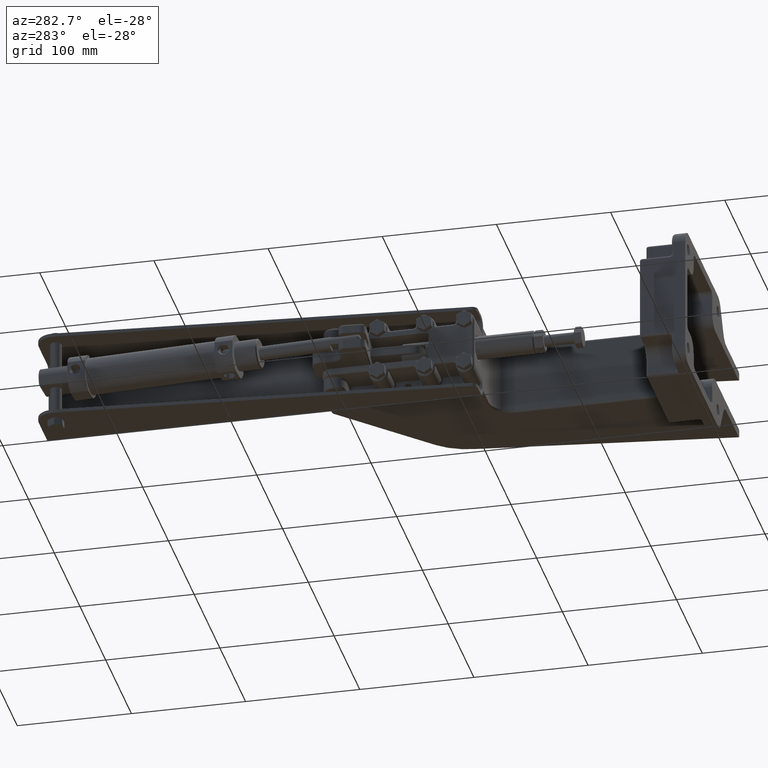
[diagram: clean part render]
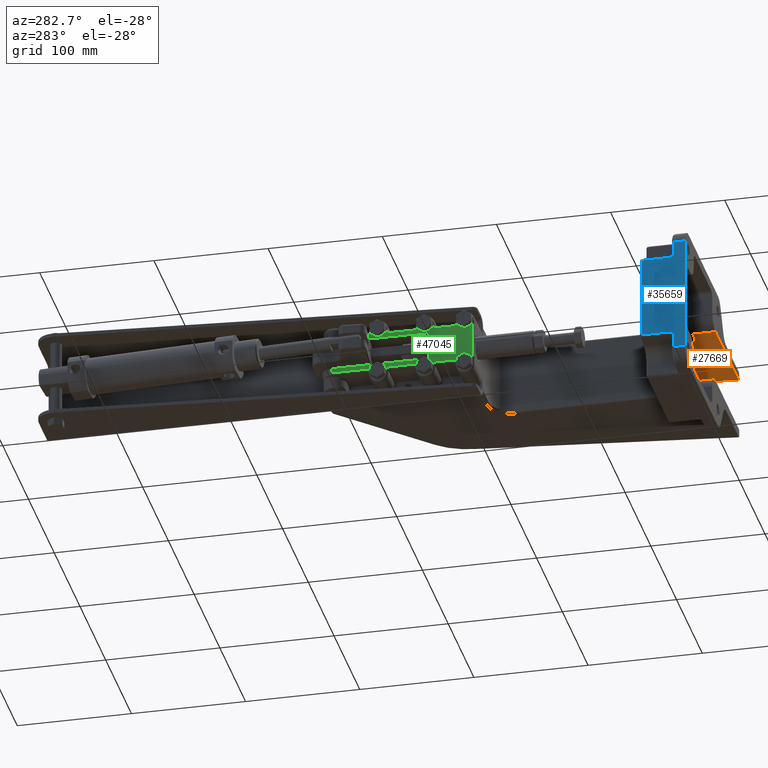
[diagram: same view with three faces highlighted in distinct colors, each labeled with its STEP entity id]
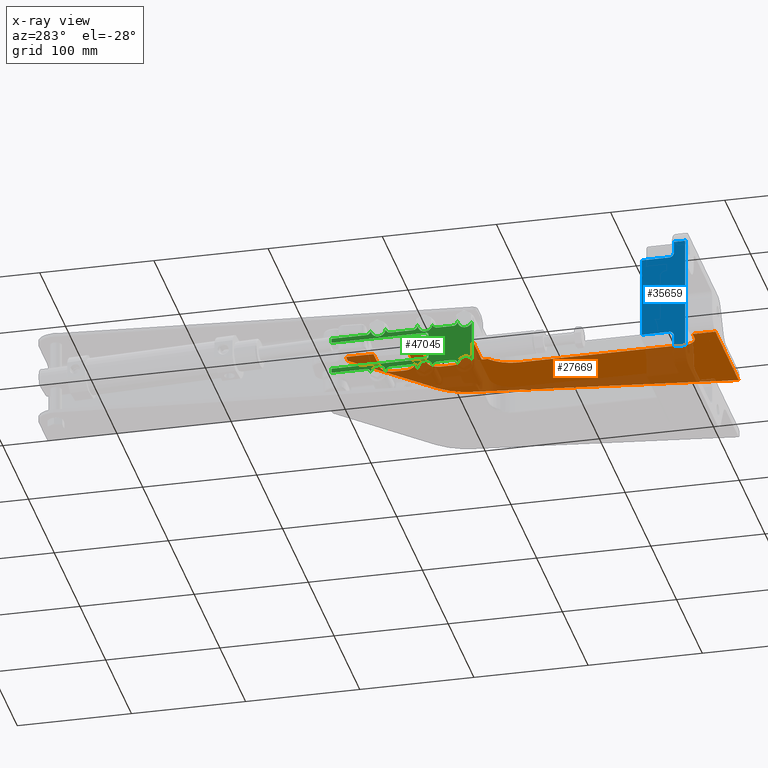
[diagram: x-ray of the same camera — body ghosted, the three highlighted faces saturated]
A machine part, auxiliary view with three faces highlighted in distinct colors.
The next image is the same camera in x-ray (body ghosted, the three faces saturated) — at least one of them is partly hidden behind the body in this view.
Their STEP definitions:

[orange] entity #27669 — the highlighted planar face has unit normal (0, 0, -1).
#163 = LINE ( 'NONE', #12026, #32062 ) ;
#274 = EDGE_CURVE ( 'NONE', #35860, #12873, #26712, .T. ) ;
#442 = VECTOR ( 'NONE', #14995, 1000.000000000000000 ) ;
#520 = VERTEX_POINT ( 'NONE', #581 ) ;
#581 = CARTESIAN_POINT ( 'NONE',  ( -81.91857000000021600, 274.6348562251276300, 23.49999999999998600 ) ) ;
#677 = LINE ( 'NONE', #52401, #11774 ) ;
#775 = LINE ( 'NONE', #21586, #32701 ) ;
#846 = CARTESIAN_POINT ( 'NONE',  ( -116.9185700000001600, 306.0879675292683800, 23.49999999999998600 ) ) ;
#930 = VERTEX_POINT ( 'NONE', #32222 ) ;
#1742 = CARTESIAN_POINT ( 'NONE',  ( -82.50935355070350900, 246.1798111950796500, 23.49999999999998200 ) ) ;
#1882 = ORIENTED_EDGE ( 'NONE', *, *, #40202, .T. ) ;
#1936 = CARTESIAN_POINT ( 'NONE',  ( -86.82017436108488100, 251.5216206661850400, 23.49999999999998600 ) ) ;
#1983 = CARTESIAN_POINT ( 'NONE',  ( -91.91857000000005900, 223.2697090500356000, 23.49999999999998600 ) ) ;
#2164 = CARTESIAN_POINT ( 'NONE',  ( -88.16910736666335400, 224.0065169678878200, 23.49999999999998600 ) ) ;
#2185 = CARTESIAN_POINT ( 'NONE',  ( -85.99535228702329400, 266.2312204202432900, 23.49999999999998600 ) ) ;
#2196 = LINE ( 'NONE', #54014, #10680 ) ;
#2263 = CARTESIAN_POINT ( 'NONE',  ( -39.69335091559545200, 249.0995571702635200, 23.49999999999998600 ) ) ;
#2290 = CARTESIAN_POINT ( 'NONE',  ( -82.94311660439082300, 288.2586009410454200, 23.49999999999998600 ) ) ;
#2349 = CARTESIAN_POINT ( 'NONE',  ( -83.09436858366045400, 228.6387692006640600, 23.49999999999998200 ) ) ;
#2370 = CARTESIAN_POINT ( 'NONE',  ( -82.68388975430093500, 270.5535696795386100, 23.49999999999998600 ) ) ;
#2447 = CARTESIAN_POINT ( 'NONE',  ( -34.47664246440604100, 239.9523446889639000, 23.49999999999998200 ) ) ;
#2468 = CARTESIAN_POINT ( 'NONE',  ( -89.26621662336025100, 293.5915138655526600, 23.49999999999997900 ) ) ;
#2629 = CARTESIAN_POINT ( 'NONE',  ( -30.64380704853266800, 225.8151843571626200, 23.49999999999998600 ) ) ;
#2800 = DIRECTION ( 'NONE',  ( -1.000000000000000000, 0.0000000000000000000, 0.0000000000000000000 ) ) ;
#3485 = DIRECTION ( 'NONE',  ( 0.0000000000000000000, 1.000000000000000000, 0.0000000000000000000 ) ) ;
#3697 = VECTOR ( 'NONE', #5114, 1000.000000000000000 ) ;
#5114 = DIRECTION ( 'NONE',  ( 0.0000000000000000000, 1.000000000000000000, 0.0000000000000000000 ) ) ;
#5182 = EDGE_LOOP ( 'NONE', ( #10980, #27617, #44338, #28459, #36688, #35484, #22841, #8373, #53415, #33739, #50506, #27317, #15190, #33743, #29541, #1882, #40203, #36021, #47267, #35858, #42295, #42963, #12228, #51140, #50167 ) ) ;
#5557 = EDGE_CURVE ( 'NONE', #12873, #30549, #775, .T. ) ;
#5980 = CARTESIAN_POINT ( 'NONE',  ( -82.59205094278864600, 246.4094670022574600, 23.49999999999998600 ) ) ;
#6158 = CARTESIAN_POINT ( 'NONE',  ( -87.70985612698481800, 251.9963707615192700, 23.49999999999998900 ) ) ;
#6196 = CARTESIAN_POINT ( 'NONE',  ( -2.016284046324207800, -1.964210908888137700E-008, 23.50000000000004300 ) ) ;
#6205 = CARTESIAN_POINT ( 'NONE',  ( -91.24868699679852600, 223.2697459344904900, 23.49999999999999300 ) ) ;
#6381 = CARTESIAN_POINT ( 'NONE',  ( -86.82211275833411400, 224.6571571817146100, 23.49999999999997900 ) ) ;
#6401 = CARTESIAN_POINT ( 'NONE',  ( -85.22536189262270100, 266.8735717676903500, 23.49999999999997500 ) ) ;
#6436 = CARTESIAN_POINT ( 'NONE',  ( -81.91857000000027300, 242.5651417748729800, 23.49999999999998600 ) ) ;
#6484 = CARTESIAN_POINT ( 'NONE',  ( -39.12588126834356200, 248.2957500562699500, 23.49999999999997900 ) ) ;
#6505 = CARTESIAN_POINT ( 'NONE',  ( -83.34001547569987200, 288.9888487428596000, 23.49999999999999300 ) ) ;
#6563 = CARTESIAN_POINT ( 'NONE',  ( -82.74764696975958600, 229.3985370332775900, 23.49999999999998600 ) ) ;
#6584 = CARTESIAN_POINT ( 'NONE',  ( -82.15338631849741100, 271.9355180251964200, 23.49999999999998600 ) ) ;
#6660 = CARTESIAN_POINT ( 'NONE',  ( -34.44672726911567700, 239.8833483215081800, 23.49999999999998200 ) ) ;
#6685 = CARTESIAN_POINT ( 'NONE',  ( -91.24646361192733900, 293.9302521069112100, 23.49999999999998600 ) ) ;
#7007 = EDGE_CURVE ( 'NONE', #40114, #22780, #47596, .T. ) ;
#7474 = DIRECTION ( 'NONE',  ( 0.0000000000000000000, 0.0000000000000000000, -1.000000000000000000 ) ) ;
#8084 = CARTESIAN_POINT ( 'NONE',  ( -91.91857000000005900, 264.2697090500353200, 23.49999999999999300 ) ) ;
#8373 = ORIENTED_EDGE ( 'NONE', *, *, #274, .T. ) ;
#8514 = VERTEX_POINT ( 'NONE', #10839 ) ;
#8754 = VECTOR ( 'NONE', #43330, 1000.000000000000000 ) ;
#9209 = DIRECTION ( 'NONE',  ( 0.0000000000000000000, 1.000000000000000000, 0.0000000000000000000 ) ) ;
#9613 = VERTEX_POINT ( 'NONE', #41380 ) ;
#9661 = VERTEX_POINT ( 'NONE', #45937 ) ;
#9758 = DIRECTION ( 'NONE',  ( 0.0000000000000000000, 0.0000000000000000000, 1.000000000000000000 ) ) ;
#10120 = CARTESIAN_POINT ( 'NONE',  ( -82.94311660448281000, 247.2586009412214000, 23.49999999999998900 ) ) ;
#10310 = CARTESIAN_POINT ( 'NONE',  ( -89.26621662419896100, 252.5915138656557700, 23.49999999999998200 ) ) ;
#10540 = CARTESIAN_POINT ( 'NONE',  ( -85.59819207342911800, 225.5377629277247100, 23.49999999999998600 ) ) ;
#10568 = CARTESIAN_POINT ( 'NONE',  ( -84.86256665467951200, 267.2232032934370000, 23.49999999999998200 ) ) ;
#10647 = CARTESIAN_POINT ( 'NONE',  ( -38.99267238048096800, 248.1027440315657800, 23.49999999999997900 ) ) ;
#10669 = CARTESIAN_POINT ( 'NONE',  ( -83.87207868414640200, 289.8418181274458300, 23.49999999999998600 ) ) ;
#10680 = VECTOR ( 'NONE', #41631, 1000.000000000000000 ) ;
#10719 = CARTESIAN_POINT ( 'NONE',  ( -82.65217658163803100, 229.6335030890973000, 23.49999999999998600 ) ) ;
#10741 = CARTESIAN_POINT ( 'NONE',  ( -81.91857000000021600, 274.6348562251276300, 23.49999999999998600 ) ) ;
#10816 = CARTESIAN_POINT ( 'NONE',  ( -33.10171180455100200, 236.5303270724329500, 23.49999999999998600 ) ) ;
#10839 = CARTESIAN_POINT ( 'NONE',  ( -92.49999999999992900, 19.99999795431122300, 23.49999999999999300 ) ) ;
#10980 = ORIENTED_EDGE ( 'NONE', *, *, #52065, .F. ) ;
#11252 = LINE ( 'NONE', #846, #19686 ) ;
#11502 = AXIS2_PLACEMENT_3D ( 'NONE', #32364, #7474, #36592 ) ;
#11774 = VECTOR ( 'NONE', #31341, 1000.000000000000000 ) ;
#12002 = EDGE_CURVE ( 'NONE', #9613, #930, #43222, .T. ) ;
#12026 = CARTESIAN_POINT ( 'NONE',  ( -59.12272016529347200, 19.99999795431140700, 23.49999999999998600 ) ) ;
#12228 = ORIENTED_EDGE ( 'NONE', *, *, #35710, .T. ) ;
#12873 = VERTEX_POINT ( 'NONE', #28389 ) ;
#13086 = DIRECTION ( 'NONE',  ( 5.131603737580131200E-016, 3.458206193102139100E-016, 1.000000000000000000 ) ) ;
#14108 = CARTESIAN_POINT ( 'NONE',  ( -81.91860080620354300, 243.2600723423456400, 23.49999999999998600 ) ) ;
#14288 = CARTESIAN_POINT ( 'NONE',  ( -83.34001547574583000, 247.9888487429477700, 23.49999999999998900 ) ) ;
#14352 = B_SPLINE_CURVE_WITH_KNOTS ( 'NONE', 3,
 ( #18313, #14108, #22499, #51728, #26707, #1742, #30834, #5980, #35087, #10120, #39304, #14288, #43545, #18489, #47729, #22685, #51906, #26893, #1936, #31018, #6158, #35262, #10310, #39478, #14470, #43716 ),
 .UNSPECIFIED., .F., .F.,
 ( 4, 1, 1, 1, 2, 2, 1, 2, 2, 2, 2, 2, 2, 2, 4 ),
 ( 0.0000000000000000000, 0.1249999999999892000, 0.1874999999999812400, 0.2187499999999797700, 0.2343749999999790700, 0.2499999999999783500, 0.3124999999999794100, 0.3437499999999827900, 0.3749999999999861800, 0.4999999999999925600, 0.6249999999999988900, 0.6874999999999990000, 0.7499999999999991100, 0.8749999999999995600, 1.000000000000000000 ),
 .UNSPECIFIED. ) ;
#14435 = CARTESIAN_POINT ( 'NONE',  ( -44.66113141188801400, 254.9195539749323700, 23.49999999999843700 ) ) ;
#14470 = CARTESIAN_POINT ( 'NONE',  ( -91.24646361108871400, 252.9302521068078700, 23.49999999999997200 ) ) ;
#14534 = CARTESIAN_POINT ( 'NONE',  ( -89.60043878202044700, 264.5394041098755900, 23.49999999999997900 ) ) ;
#14632 = CARTESIAN_POINT ( 'NONE',  ( -81.91857000000027300, 283.5651417748727600, 23.49999999999998600 ) ) ;
#14684 = CARTESIAN_POINT ( 'NONE',  ( -84.98221511288998900, 226.1039479570114600, 23.49999999999998900 ) ) ;
#14707 = CARTESIAN_POINT ( 'NONE',  ( -84.29855585323096500, 267.8381363956482300, 23.49999999999999300 ) ) ;
#14718 = LINE ( 'NONE', #42504, #3697 ) ;
#14789 = CARTESIAN_POINT ( 'NONE',  ( -38.05905102691333000, 246.7392998234144800, 23.49999999999998600 ) ) ;
#14814 = CARTESIAN_POINT ( 'NONE',  ( -85.20755382292300300, 291.3385028225126200, 23.49999999999998600 ) ) ;
#14870 = LINE ( 'NONE', #36041, #24660 ) ;
#14876 = CARTESIAN_POINT ( 'NONE',  ( -81.91863099257487600, 232.2437726990090700, 23.49999999999998600 ) ) ;
#14978 = CARTESIAN_POINT ( 'NONE',  ( -32.03982133395371100, 232.9153155769771500, 23.49999999999997900 ) ) ;
#14995 = DIRECTION ( 'NONE',  ( 0.0000000000000000000, 1.000000000000000000, 0.0000000000000000000 ) ) ;
#15189 = LINE ( 'NONE', #34831, #47221 ) ;
#15190 = ORIENTED_EDGE ( 'NONE', *, *, #7007, .T. ) ;
#15620 = PLANE ( 'NONE',  #11502 ) ;
#15729 = EDGE_CURVE ( 'NONE', #49185, #8514, #30396, .T. ) ;
#16170 = DIRECTION ( 'NONE',  ( 1.000000000000000000, -0.0000000000000000000, -0.0000000000000000000 ) ) ;
#16454 = EDGE_CURVE ( 'NONE', #26346, #36990, #53191, .T. ) ;
#17037 = CIRCLE ( 'NONE', #48551, 9.999999999999564800 ) ;
#17278 = VECTOR ( 'NONE', #3485, 1000.000000000000000 ) ;
#17280 = VERTEX_POINT ( 'NONE', #26623 ) ;
#17348 = VERTEX_POINT ( 'NONE', #6436 ) ;
#18003 = CARTESIAN_POINT ( 'NONE',  ( -81.91857000000021600, 233.6348562251263600, 23.49999999999998600 ) ) ;
#18125 = CARTESIAN_POINT ( 'NONE',  ( -81.91860080620355700, 284.2600723422745500, 23.49999999999997900 ) ) ;
#18286 = CARTESIAN_POINT ( 'NONE',  ( -119.2666733217766200, 318.1006240976865300, 23.49999999999990400 ) ) ;
#18313 = CARTESIAN_POINT ( 'NONE',  ( -81.91857000000027300, 242.5651417748729800, 23.49999999999998600 ) ) ;
#18489 = CARTESIAN_POINT ( 'NONE',  ( -83.87207868435213200, 248.8418181277384300, 23.49999999999998900 ) ) ;
#18583 = CARTESIAN_POINT ( 'NONE',  ( -92.49999999999978700, -1.473383389024743700E-006, 23.49999999999998600 ) ) ;
#18587 = LINE ( 'NONE', #32567, #17278 ) ;
#18628 = CARTESIAN_POINT ( 'NONE',  ( -43.60221374070437900, 253.8603773980607300, 23.49999999999998600 ) ) ;
#18709 = CARTESIAN_POINT ( 'NONE',  ( -90.58704219935525300, 223.3368410075069300, 23.49999999999998200 ) ) ;
#18729 = CARTESIAN_POINT ( 'NONE',  ( -88.63991641672630800, 264.8274341136913700, 23.49999999999999300 ) ) ;
#18829 = CARTESIAN_POINT ( 'NONE',  ( -82.42967776869825500, 286.9471936849017200, 23.49999999999999600 ) ) ;
#18886 = CARTESIAN_POINT ( 'NONE',  ( -84.51640172289637600, 226.5858321845183200, 23.49999999999997900 ) ) ;
#18912 = CARTESIAN_POINT ( 'NONE',  ( -83.69566626326225400, 268.6389603071721100, 23.49999999999998200 ) ) ;
#18984 = CARTESIAN_POINT ( 'NONE',  ( -35.57987433334301400, 242.3411125163671000, 23.49999999999998900 ) ) ;
#19012 = CARTESIAN_POINT ( 'NONE',  ( -86.53511114785681000, 292.3440618494042300, 23.49999999999998600 ) ) ;
#19047 = CARTESIAN_POINT ( 'NONE',  ( -86.91857000000018700, 200.9339639966834700, 23.49999999999985800 ) ) ;
#19156 = CARTESIAN_POINT ( 'NONE',  ( -31.81152308022882400, 231.9989167399798800, 23.49999999999998600 ) ) ;
#19333 = VECTOR ( 'NONE', #37669, 1000.000000000000000 ) ;
#19634 = CARTESIAN_POINT ( 'NONE',  ( -91.91857000000005900, 293.9302889499633700, 23.49999999999998600 ) ) ;
#19686 = VECTOR ( 'NONE', #25608, 1000.000000000000000 ) ;
#19807 = EDGE_CURVE ( 'NONE', #26111, #40114, #38073, .T. ) ;
#21041 = VERTEX_POINT ( 'NONE', #32727 ) ;
#21292 = CARTESIAN_POINT ( 'NONE',  ( -74.91846500000043800, 29.99999795431080300, 23.49999999999998600 ) ) ;
#21586 = CARTESIAN_POINT ( 'NONE',  ( -59.12272016529347200, 264.2697090500348100, 23.49999999999998600 ) ) ;
#21961 = FACE_OUTER_BOUND ( 'NONE', #5182, .T. ) ;
#22499 = CARTESIAN_POINT ( 'NONE',  ( -82.00655237239561800, 244.2715921078405200, 23.49999999999998600 ) ) ;
#22685 = CARTESIAN_POINT ( 'NONE',  ( -85.20755382298142400, 250.3385028224968800, 23.49999999999997500 ) ) ;
#22756 = CARTESIAN_POINT ( 'NONE',  ( -91.24868699688032300, 264.2697459344736300, 23.49999999999997900 ) ) ;
#22780 = VERTEX_POINT ( 'NONE', #28808 ) ;
#22841 = ORIENTED_EDGE ( 'NONE', *, *, #31181, .T. ) ;
#22843 = CARTESIAN_POINT ( 'NONE',  ( -109.5939219772113700, 318.1006240976864800, 23.49999999999991100 ) ) ;
#22924 = CARTESIAN_POINT ( 'NONE',  ( -89.11458880245699300, 223.6651047757696100, 23.49999999999998600 ) ) ;
#22950 = CARTESIAN_POINT ( 'NONE',  ( -88.16910736662637800, 265.0065169679078800, 23.49999999999998200 ) ) ;
#23043 = CARTESIAN_POINT ( 'NONE',  ( -82.56430210030866600, 287.3342462833593900, 23.49999999999998600 ) ) ;
#23092 = CARTESIAN_POINT ( 'NONE',  ( -83.88872561770374100, 227.3638480510325300, 23.49999999999998600 ) ) ;
#23117 = CARTESIAN_POINT ( 'NONE',  ( -83.09436858357310000, 269.6387692008465800, 23.49999999999998600 ) ) ;
#23195 = CARTESIAN_POINT ( 'NONE',  ( -34.71264126832429000, 240.4884150723523500, 23.49999999999998900 ) ) ;
#23217 = CARTESIAN_POINT ( 'NONE',  ( -87.40988710392488800, 292.8490478755833200, 23.49999999999998900 ) ) ;
#23383 = CARTESIAN_POINT ( 'NONE',  ( -31.75934960944543700, 231.7799838412726400, 23.49999999999998900 ) ) ;
#23507 = EDGE_CURVE ( 'NONE', #36990, #21041, #14718, .T. ) ;
#23594 = VERTEX_POINT ( 'NONE', #18003 ) ;
#23736 = EDGE_CURVE ( 'NONE', #44370, #23594, #26574, .T. ) ;
#24660 = VECTOR ( 'NONE', #40273, 1000.000000000000000 ) ;
#24897 = EDGE_CURVE ( 'NONE', #8514, #9661, #163, .T. ) ;
#25337 = VECTOR ( 'NONE', #2800, 1000.000000000000000 ) ;
#25608 = DIRECTION ( 'NONE',  ( -0.0000000000000000000, -1.000000000000000000, -0.0000000000000000000 ) ) ;
#25758 = CARTESIAN_POINT ( 'NONE',  ( -74.91846500000052300, 159.0503110259987000, 23.49999999999998600 ) ) ;
#25921 = VECTOR ( 'NONE', #9209, 1000.000000000000000 ) ;
#26111 = VERTEX_POINT ( 'NONE', #38954 ) ;
#26346 = VERTEX_POINT ( 'NONE', #48615 ) ;
#26574 = B_SPLINE_CURVE_WITH_KNOTS ( 'NONE', 3,
 ( #1983, #6205, #18709, #47935, #22924, #52131, #27107, #2164, #31258, #6381, #35486, #10540, #39718, #14684, #43946, #18886, #48118, #23092, #52324, #27287, #2349, #31429, #6563, #35660, #10719, #39898, #14876, #44114 ),
 .UNSPECIFIED., .F., .F.,
 ( 4, 2, 1, 2, 2, 2, 1, 2, 2, 2, 2, 1, 1, 2, 2, 4 ),
 ( 0.0000000000000000000, 0.1249999999999996400, 0.1875000000000001900, 0.2187500000000025000, 0.2500000000000048300, 0.3750000000000146500, 0.4375000000000181000, 0.4687500000000205400, 0.5000000000000229800, 0.5625000000000315300, 0.6250000000000401900, 0.6875000000000487400, 0.7187500000000500700, 0.7343750000000484100, 0.7500000000000466300, 1.000000000000000000 ),
 .UNSPECIFIED. ) ;
#26623 = CARTESIAN_POINT ( 'NONE',  ( -116.9185700000001600, 206.0047365096554000, 23.49999999999998600 ) ) ;
#26707 = CARTESIAN_POINT ( 'NONE',  ( -82.42967776869839700, 245.9471936849561200, 23.49999999999998200 ) ) ;
#26712 = LINE ( 'NONE', #36396, #28020 ) ;
#26893 = CARTESIAN_POINT ( 'NONE',  ( -86.53511114766631400, 251.3440618492996400, 23.49999999999998900 ) ) ;
#27107 = CARTESIAN_POINT ( 'NONE',  ( -88.32595206920517200, 223.9437933772231300, 23.49999999999998900 ) ) ;
#27124 = CARTESIAN_POINT ( 'NONE',  ( -86.82211275846566400, 265.6571571816456900, 23.49999999999998900 ) ) ;
#27199 = CARTESIAN_POINT ( 'NONE',  ( -40.47013791467107100, 250.1541009516799900, 23.49999999999999600 ) ) ;
#27225 = CARTESIAN_POINT ( 'NONE',  ( -82.74178469037657600, 287.8007144608419600, 23.49999999999998600 ) ) ;
#27287 = CARTESIAN_POINT ( 'NONE',  ( -83.33970901072373700, 228.2034688074103300, 23.49999999999998200 ) ) ;
#27308 = CARTESIAN_POINT ( 'NONE',  ( -82.74764696971746500, 270.3985370333655300, 23.49999999999998600 ) ) ;
#27317 = ORIENTED_EDGE ( 'NONE', *, *, #19807, .T. ) ;
#27386 = CARTESIAN_POINT ( 'NONE',  ( -34.50585014813557200, 240.0195203313053600, 23.49999999999998600 ) ) ;
#27412 = CARTESIAN_POINT ( 'NONE',  ( -88.63245533251246400, 293.3923234633920700, 23.49999999999998600 ) ) ;
#27575 = CARTESIAN_POINT ( 'NONE',  ( -31.05417514502293100, 228.7734322083812500, 23.49999999999998900 ) ) ;
#27617 = ORIENTED_EDGE ( 'NONE', *, *, #48663, .T. ) ;
#27669 = ADVANCED_FACE ( 'NONE', ( #21961 ), #15620, .T. ) ;
#27698 = VECTOR ( 'NONE', #51166, 1000.000000000000200 ) ;
#27745 = CARTESIAN_POINT ( 'NONE',  ( -59.12272016529347200, 293.9302889499630300, 23.49999999999998600 ) ) ;
#28020 = VECTOR ( 'NONE', #44851, 1000.000000000000000 ) ;
#28389 = CARTESIAN_POINT ( 'NONE',  ( -116.9185700000001600, 264.2697090500350300, 23.50000000000001400 ) ) ;
#28459 = ORIENTED_EDGE ( 'NONE', *, *, #23736, .T. ) ;
#28610 = EDGE_CURVE ( 'NONE', #930, #35343, #28990, .T. ) ;
#28678 = EDGE_CURVE ( 'NONE', #28749, #46997, #51852, .T. ) ;
#28749 = VERTEX_POINT ( 'NONE', #22843 ) ;
#28808 = CARTESIAN_POINT ( 'NONE',  ( -116.9185700000001700, 293.9302889499635400, 23.50000000000002800 ) ) ;
#28990 = LINE ( 'NONE', #46979, #27698 ) ;
#29541 = ORIENTED_EDGE ( 'NONE', *, *, #28678, .F. ) ;
#29718 = CARTESIAN_POINT ( 'NONE',  ( -91.91857000000005900, 252.9302889499636000, 23.49999999999997900 ) ) ;
#30396 = LINE ( 'NONE', #33464, #19333 ) ;
#30549 = VERTEX_POINT ( 'NONE', #8084 ) ;
#30834 = CARTESIAN_POINT ( 'NONE',  ( -82.56430210030880800, 246.3342462833763000, 23.49999999999998900 ) ) ;
#31018 = CARTESIAN_POINT ( 'NONE',  ( -87.40988710416496600, 251.8490478757004500, 23.49999999999998200 ) ) ;
#31093 = CARTESIAN_POINT ( 'NONE',  ( -91.91857000000005900, 264.2697090500353200, 23.49999999999999300 ) ) ;
#31103 = EDGE_CURVE ( 'NONE', #30549, #520, #37221, .T. ) ;
#31181 = EDGE_CURVE ( 'NONE', #43575, #35860, #14870, .T. ) ;
#31258 = CARTESIAN_POINT ( 'NONE',  ( -87.40213846493304600, 224.3357431189132300, 23.49999999999998900 ) ) ;
#31280 = CARTESIAN_POINT ( 'NONE',  ( -85.59819207331408100, 266.5377629277849700, 23.49999999999999300 ) ) ;
#31341 = DIRECTION ( 'NONE',  ( -1.000000000000000000, 0.0000000000000000000, 0.0000000000000000000 ) ) ;
#31357 = CARTESIAN_POINT ( 'NONE',  ( -39.31359776008894600, 248.5649142635945700, 23.49999999999998900 ) ) ;
#31382 = CARTESIAN_POINT ( 'NONE',  ( -83.17692564379140700, 288.6990717161475000, 23.49999999999998600 ) ) ;
#31429 = CARTESIAN_POINT ( 'NONE',  ( -82.84598623195024900, 229.1674779412283000, 23.49999999999998600 ) ) ;
#31449 = CARTESIAN_POINT ( 'NONE',  ( -82.65217658164137000, 270.6335030890821800, 23.49999999999998900 ) ) ;
#31526 = CARTESIAN_POINT ( 'NONE',  ( -34.45720247571672000, 239.9075427674662300, 23.49999999999998200 ) ) ;
#31552 = CARTESIAN_POINT ( 'NONE',  ( -90.58157165898471400, 293.8624897214184000, 23.49999999999998600 ) ) ;
#31697 = CARTESIAN_POINT ( 'NONE',  ( -30.50762376075406500, 222.8175828217119900, 23.50000000000004300 ) ) ;
#32062 = VECTOR ( 'NONE', #16170, 1000.000000000000000 ) ;
#32222 = CARTESIAN_POINT ( 'NONE',  ( -30.50762376075406500, 222.8175828217119900, 23.50000000000004300 ) ) ;
#32364 = CARTESIAN_POINT ( 'NONE',  ( -1.326870330586772600, -2.045689330000000600E-006, 23.49999999999998600 ) ) ;
#32519 = CARTESIAN_POINT ( 'NONE',  ( -116.9185700000001600, 223.2697090500354900, 23.50000000000000700 ) ) ;
#32567 = CARTESIAN_POINT ( 'NONE',  ( -81.91857000000034400, 159.0503110259987000, 23.49999999999998600 ) ) ;
#32701 = VECTOR ( 'NONE', #50803, 1000.000000000000000 ) ;
#32727 = CARTESIAN_POINT ( 'NONE',  ( -86.91857000000018700, 206.0047365096554000, 23.49999999999998600 ) ) ;
#33464 = CARTESIAN_POINT ( 'NONE',  ( -92.49999999999978700, 159.0503110259987000, 23.49999999999998600 ) ) ;
#33530 = EDGE_CURVE ( 'NONE', #46997, #22780, #11252, .T. ) ;
#33739 = ORIENTED_EDGE ( 'NONE', *, *, #31103, .T. ) ;
#33743 = ORIENTED_EDGE ( 'NONE', *, *, #33530, .F. ) ;
#34181 = EDGE_CURVE ( 'NONE', #35343, #49185, #677, .T. ) ;
#34567 = LINE ( 'NONE', #36755, #43119 ) ;
#34711 = CARTESIAN_POINT ( 'NONE',  ( -84.91846500000008300, 29.99999795431079300, 23.49999999999998600 ) ) ;
#34831 = CARTESIAN_POINT ( 'NONE',  ( -81.91857000000034400, 159.0503110259987000, 23.49999999999998600 ) ) ;
#35064 = CARTESIAN_POINT ( 'NONE',  ( -116.9185700000001600, 252.9302889499636000, 23.49999999999997900 ) ) ;
#35087 = CARTESIAN_POINT ( 'NONE',  ( -82.74178469042924200, 246.8007144609424000, 23.49999999999998600 ) ) ;
#35262 = CARTESIAN_POINT ( 'NONE',  ( -88.63245533235351600, 252.3923234632898100, 23.49999999999998200 ) ) ;
#35343 = VERTEX_POINT ( 'NONE', #6196 ) ;
#35484 = ORIENTED_EDGE ( 'NONE', *, *, #43109, .T. ) ;
#35486 = CARTESIAN_POINT ( 'NONE',  ( -85.99535228708906200, 225.2312204202089600, 23.49999999999999300 ) ) ;
#35504 = CARTESIAN_POINT ( 'NONE',  ( -84.98221511283243500, 267.1039479570414400, 23.49999999999997500 ) ) ;
#35576 = CARTESIAN_POINT ( 'NONE',  ( -39.04589421888292800, 248.1799990915614300, 23.49999999999999300 ) ) ;
#35599 = CARTESIAN_POINT ( 'NONE',  ( -83.42439409905142600, 289.1305711363109500, 23.49999999999998200 ) ) ;
#35660 = CARTESIAN_POINT ( 'NONE',  ( -82.68388975432434100, 229.5535696794899500, 23.49999999999998900 ) ) ;
#35681 = CARTESIAN_POINT ( 'NONE',  ( -81.91863099252171300, 273.2437726992482700, 23.49999999999998600 ) ) ;
#35710 = EDGE_CURVE ( 'NONE', #52674, #26346, #37014, .T. ) ;
#35761 = CARTESIAN_POINT ( 'NONE',  ( -33.86711697858884000, 238.5420918176100700, 23.49999999999998900 ) ) ;
#35783 = CARTESIAN_POINT ( 'NONE',  ( -91.91857000000005900, 293.9302889499633700, 23.49999999999998600 ) ) ;
#35858 = ORIENTED_EDGE ( 'NONE', *, *, #15729, .T. ) ;
#35860 = VERTEX_POINT ( 'NONE', #35064 ) ;
#36021 = ORIENTED_EDGE ( 'NONE', *, *, #28610, .T. ) ;
#36041 = CARTESIAN_POINT ( 'NONE',  ( -59.12272016529347200, 252.9302889499636000, 23.49999999999998600 ) ) ;
#36396 = CARTESIAN_POINT ( 'NONE',  ( -116.9185700000001600, 159.0503110259987000, 23.49999999999998600 ) ) ;
#36592 = DIRECTION ( 'NONE',  ( -1.000000000000000000, 0.0000000000000000000, 0.0000000000000000000 ) ) ;
#36688 = ORIENTED_EDGE ( 'NONE', *, *, #49409, .T. ) ;
#36755 = CARTESIAN_POINT ( 'NONE',  ( -109.5939219772114800, 318.1006240976867600, 23.49999999999998600 ) ) ;
#36990 = VERTEX_POINT ( 'NONE', #19047 ) ;
#37014 = LINE ( 'NONE', #25758, #25921 ) ;
#37221 = B_SPLINE_CURVE_WITH_KNOTS ( 'NONE', 3,
 ( #31093, #22756, #39550, #14534, #43790, #18729, #47955, #22950, #52158, #27124, #2185, #31280, #6401, #35504, #10568, #39740, #14707, #43964, #18912, #48139, #23117, #52345, #27308, #2370, #31449, #6584, #35681, #10741 ),
 .UNSPECIFIED., .F., .F.,
 ( 4, 2, 1, 2, 2, 2, 1, 2, 2, 2, 2, 1, 1, 2, 2, 4 ),
 ( 0.0000000000000000000, 0.1249999999999688600, 0.1874999999999522600, 0.2187499999999454900, 0.2499999999999387700, 0.3749999999999117900, 0.4374999999998942500, 0.4687499999998845400, 0.4999999999998748200, 0.5624999999998553400, 0.6249999999998359100, 0.6874999999998163700, 0.7187499999998112600, 0.7343749999998140400, 0.7499999999998168100, 1.000000000000000000 ),
 .UNSPECIFIED. ) ;
#37669 = DIRECTION ( 'NONE',  ( 0.0000000000000000000, 1.000000000000000000, 0.0000000000000000000 ) ) ;
#38064 = CARTESIAN_POINT ( 'NONE',  ( -107.0248442731995100, 175.8640940088431800, 23.49999999999986900 ) ) ;
#38073 = B_SPLINE_CURVE_WITH_KNOTS ( 'NONE', 3,
 ( #14632, #18125, #39658, #43894, #18829, #48060, #23043, #52264, #27225, #2290, #31382, #6505, #35599, #10669, #39840, #14814, #44063, #19012, #48234, #23217, #52434, #27412, #2468, #31552, #6685, #35783 ),
 .UNSPECIFIED., .F., .F.,
 ( 4, 1, 1, 1, 2, 2, 1, 2, 2, 2, 2, 2, 2, 2, 4 ),
 ( 0.0000000000000000000, 0.1250000000000017200, 0.1874999999999976700, 0.2187499999999952800, 0.2343749999999936700, 0.2499999999999920600, 0.3124999999999962300, 0.3437499999999988900, 0.3750000000000015500, 0.5000000000000034400, 0.6250000000000054400, 0.6875000000000045500, 0.7500000000000036600, 0.8750000000000017800, 1.000000000000000000 ),
 .UNSPECIFIED. ) ;
#38677 = CARTESIAN_POINT ( 'NONE',  ( -86.91857000000018700, 206.0047365096554000, 23.49999999999998600 ) ) ;
#38914 = DIRECTION ( 'NONE',  ( -1.000000000000000000, 0.0000000000000000000, 0.0000000000000000000 ) ) ;
#38954 = CARTESIAN_POINT ( 'NONE',  ( -81.91857000000027300, 283.5651417748727600, 23.49999999999998600 ) ) ;
#39304 = CARTESIAN_POINT ( 'NONE',  ( -83.17692564386361200, 247.6990717162857400, 23.49999999999998900 ) ) ;
#39478 = CARTESIAN_POINT ( 'NONE',  ( -90.58157165814611700, 252.8624897213152000, 23.49999999999998200 ) ) ;
#39550 = CARTESIAN_POINT ( 'NONE',  ( -90.58704219927858500, 264.3368410075226500, 23.49999999999998200 ) ) ;
#39658 = CARTESIAN_POINT ( 'NONE',  ( -82.00655237239561800, 285.2715921077160000, 23.49999999999998600 ) ) ;
#39718 = CARTESIAN_POINT ( 'NONE',  ( -85.22536189271312400, 225.8735717676430900, 23.49999999999998900 ) ) ;
#39740 = CARTESIAN_POINT ( 'NONE',  ( -84.51640172278556000, 267.5858321846685600, 23.49999999999997900 ) ) ;
#39815 = CARTESIAN_POINT ( 'NONE',  ( -38.96712214040619700, 248.0655466438748200, 23.49999999999998200 ) ) ;
#39840 = CARTESIAN_POINT ( 'NONE',  ( -84.28385437983124000, 290.3702442820872400, 23.49999999999999300 ) ) ;
#39895 = LINE ( 'NONE', #38677, #49695 ) ;
#39898 = CARTESIAN_POINT ( 'NONE',  ( -82.15338631855054500, 230.9355180249572500, 23.49999999999998900 ) ) ;
#39992 = CARTESIAN_POINT ( 'NONE',  ( -32.36734972091768000, 234.1293120936906900, 23.49999999999998600 ) ) ;
#40114 = VERTEX_POINT ( 'NONE', #19634 ) ;
#40203 = ORIENTED_EDGE ( 'NONE', *, *, #12002, .T. ) ;
#40202 = EDGE_CURVE ( 'NONE', #28749, #9613, #34567, .T. ) ;
#40273 = DIRECTION ( 'NONE',  ( -1.000000000000000000, 0.0000000000000000000, 0.0000000000000000000 ) ) ;
#41015 = DIRECTION ( 'NONE',  ( 0.7167081675262768600, -0.6973732161483736600, 0.0000000000000000000 ) ) ;
#41380 = CARTESIAN_POINT ( 'NONE',  ( -44.66113141188801400, 254.9195539749323700, 23.49999999999843700 ) ) ;
#41631 = DIRECTION ( 'NONE',  ( 1.000000000000000000, -0.0000000000000000000, -0.0000000000000000000 ) ) ;
#42295 = ORIENTED_EDGE ( 'NONE', *, *, #24897, .T. ) ;
#42306 = DIRECTION ( 'NONE',  ( -1.000000000000000000, -1.727350196852142400E-015, 5.397969365162944700E-016 ) ) ;
#42504 = CARTESIAN_POINT ( 'NONE',  ( -86.91857000000018700, -2.045689330000000600E-006, 23.49999999999998600 ) ) ;
#42906 = DIRECTION ( 'NONE',  ( 1.000000000000000000, -0.0000000000000000000, -0.0000000000000000000 ) ) ;
#42963 = ORIENTED_EDGE ( 'NONE', *, *, #51337, .T. ) ;
#43109 = EDGE_CURVE ( 'NONE', #17348, #43575, #14352, .T. ) ;
#43119 = VECTOR ( 'NONE', #41015, 1000.000000000000000 ) ;
#43222 = B_SPLINE_CURVE_WITH_KNOTS ( 'NONE', 3,
 ( #14435, #18628, #52239, #27199, #2263, #31357, #6484, #35576, #10647, #39815, #14789, #44041, #18984, #48211, #23195, #52414, #27386, #2447, #31526, #6660, #35761, #10816, #39992, #14978, #44211, #19156, #48396, #23383, #52583, #27575, #2629, #31697 ),
 .UNSPECIFIED., .F., .F.,
 ( 4, 1, 1, 1, 1, 1, 2, 2, 1, 1, 1, 1, 1, 1, 2, 2, 1, 1, 1, 1, 1, 2, 2, 4 ),
 ( 0.0000000000000000000, 0.1250000000000282300, 0.1875000000000425500, 0.2187500000000504600, 0.2343750000000532900, 0.2421875000000547100, 0.2460937500000544800, 0.2500000000000542300, 0.3750000000000711100, 0.4375000000000804400, 0.4687500000000849300, 0.4843750000000872600, 0.4921875000000894800, 0.4960937500000894800, 0.4980468750000884300, 0.5000000000000873700, 0.6250000000000315300, 0.6875000000000036600, 0.7187499999999897900, 0.7343749999999829000, 0.7421874999999793500, 0.7460937499999786800, 0.7499999999999779100, 1.000000000000000000 ),
 .UNSPECIFIED. ) ;
#43330 = DIRECTION ( 'NONE',  ( -1.000000000000000000, -0.0000000000000000000, -0.0000000000000000000 ) ) ;
#43545 = CARTESIAN_POINT ( 'NONE',  ( -83.42439409899998300, 248.1305711362379900, 23.49999999999998900 ) ) ;
#43562 = LINE ( 'NONE', #52602, #442 ) ;
#43575 = VERTEX_POINT ( 'NONE', #29718 ) ;
#43716 = CARTESIAN_POINT ( 'NONE',  ( -91.91857000000005900, 252.9302889499636000, 23.49999999999997900 ) ) ;
#43790 = CARTESIAN_POINT ( 'NONE',  ( -89.11458880252395400, 264.6651047757558800, 23.49999999999998900 ) ) ;
#43894 = CARTESIAN_POINT ( 'NONE',  ( -82.26299690750528300, 286.3976653508244100, 23.49999999999998200 ) ) ;
#43946 = CARTESIAN_POINT ( 'NONE',  ( -84.86256665462413200, 226.2232032935121100, 23.49999999999998200 ) ) ;
#43964 = CARTESIAN_POINT ( 'NONE',  ( -83.88872561753756000, 268.3638480512578900, 23.49999999999997900 ) ) ;
#44041 = CARTESIAN_POINT ( 'NONE',  ( -36.83591134086905300, 244.7544262137336400, 23.49999999999998600 ) ) ;
#44063 = CARTESIAN_POINT ( 'NONE',  ( -85.71448705076619500, 291.7727292321704300, 23.49999999999998200 ) ) ;
#44114 = CARTESIAN_POINT ( 'NONE',  ( -81.91857000000021600, 233.6348562251263600, 23.49999999999998600 ) ) ;
#44211 = CARTESIAN_POINT ( 'NONE',  ( -31.88597030418492700, 232.3049450617847900, 23.49999999999998900 ) ) ;
#44338 = ORIENTED_EDGE ( 'NONE', *, *, #50210, .T. ) ;
#44370 = VERTEX_POINT ( 'NONE', #48467 ) ;
#44660 = AXIS2_PLACEMENT_3D ( 'NONE', #38064, #13086, #42306 ) ;
#44851 = DIRECTION ( 'NONE',  ( 0.0000000000000000000, 1.000000000000000000, 0.0000000000000000000 ) ) ;
#45937 = CARTESIAN_POINT ( 'NONE',  ( -84.91846500000008300, 19.99999795431118000, 23.49999999999998600 ) ) ;
#46979 = CARTESIAN_POINT ( 'NONE',  ( -30.50762376075417500, 222.8175828217131600, 23.49999999999998600 ) ) ;
#46997 = VERTEX_POINT ( 'NONE', #49282 ) ;
#47221 = VECTOR ( 'NONE', #51666, 1000.000000000000000 ) ;
#47267 = ORIENTED_EDGE ( 'NONE', *, *, #34181, .T. ) ;
#47596 = LINE ( 'NONE', #27745, #25337 ) ;
#47729 = CARTESIAN_POINT ( 'NONE',  ( -84.28385437977279100, 249.3702442821025000, 23.49999999999999300 ) ) ;
#47935 = CARTESIAN_POINT ( 'NONE',  ( -89.60043878198224800, 223.5394041098835200, 23.49999999999997900 ) ) ;
#47955 = CARTESIAN_POINT ( 'NONE',  ( -88.32595206923863900, 264.9437933772160800, 23.49999999999998200 ) ) ;
#48060 = CARTESIAN_POINT ( 'NONE',  ( -82.50935355070336600, 287.1798111950470200, 23.49999999999997500 ) ) ;
#48118 = CARTESIAN_POINT ( 'NONE',  ( -84.29855585339713300, 226.8381363954227400, 23.49999999999997900 ) ) ;
#48139 = CARTESIAN_POINT ( 'NONE',  ( -83.33970901067391400, 269.2034688075147000, 23.49999999999998900 ) ) ;
#48211 = CARTESIAN_POINT ( 'NONE',  ( -34.99459565279475000, 241.1100487128325400, 23.49999999999999600 ) ) ;
#48234 = CARTESIAN_POINT ( 'NONE',  ( -86.82017436131812400, 292.5216206663164900, 23.49999999999998600 ) ) ;
#48396 = CARTESIAN_POINT ( 'NONE',  ( -31.78014818944655700, 231.8675810883043200, 23.49999999999998200 ) ) ;
#48467 = CARTESIAN_POINT ( 'NONE',  ( -91.91857000000005900, 223.2697090500356000, 23.49999999999998600 ) ) ;
#48551 = AXIS2_PLACEMENT_3D ( 'NONE', #34711, #9758, #38914 ) ;
#48615 = CARTESIAN_POINT ( 'NONE',  ( -74.91846500000042400, 177.2573119823935900, 23.49999999999984700 ) ) ;
#48663 = EDGE_CURVE ( 'NONE', #17280, #51024, #43562, .T. ) ;
#49185 = VERTEX_POINT ( 'NONE', #18583 ) ;
#49282 = CARTESIAN_POINT ( 'NONE',  ( -116.9185700000001600, 318.1006240976865900, 23.49999999999996400 ) ) ;
#49409 = EDGE_CURVE ( 'NONE', #23594, #17348, #18587, .T. ) ;
#49695 = VECTOR ( 'NONE', #42906, 1000.000000000000000 ) ;
#50167 = ORIENTED_EDGE ( 'NONE', *, *, #23507, .T. ) ;
#50210 = EDGE_CURVE ( 'NONE', #51024, #44370, #2196, .T. ) ;
#50424 = EDGE_CURVE ( 'NONE', #520, #26111, #15189, .T. ) ;
#50506 = ORIENTED_EDGE ( 'NONE', *, *, #50424, .T. ) ;
#50803 = DIRECTION ( 'NONE',  ( 1.000000000000000000, -0.0000000000000000000, -0.0000000000000000000 ) ) ;
#51024 = VERTEX_POINT ( 'NONE', #32519 ) ;
#51140 = ORIENTED_EDGE ( 'NONE', *, *, #16454, .T. ) ;
#51166 = DIRECTION ( 'NONE',  ( 0.1268357536256873000, -0.9919237327547939500, 0.0000000000000000000 ) ) ;
#51337 = EDGE_CURVE ( 'NONE', #9661, #52674, #17037, .T. ) ;
#51666 = DIRECTION ( 'NONE',  ( 0.0000000000000000000, 1.000000000000000000, 0.0000000000000000000 ) ) ;
#51728 = CARTESIAN_POINT ( 'NONE',  ( -82.26299690750541100, 245.3976653509175800, 23.49999999999998200 ) ) ;
#51852 = LINE ( 'NONE', #18286, #8754 ) ;
#51906 = CARTESIAN_POINT ( 'NONE',  ( -85.71448705114727300, 250.7727292323797000, 23.49999999999998600 ) ) ;
#52065 = EDGE_CURVE ( 'NONE', #17280, #21041, #39895, .T. ) ;
#52131 = CARTESIAN_POINT ( 'NONE',  ( -88.63991641667365700, 223.8274341137022200, 23.49999999999998600 ) ) ;
#52158 = CARTESIAN_POINT ( 'NONE',  ( -87.40213846508095200, 265.3357431188326200, 23.49999999999998900 ) ) ;
#52239 = CARTESIAN_POINT ( 'NONE',  ( -42.09283466507299900, 252.2042203868262800, 23.49999999999998600 ) ) ;
#52264 = CARTESIAN_POINT ( 'NONE',  ( -82.59205094280156300, 287.4094670022828400, 23.49999999999998200 ) ) ;
#52324 = CARTESIAN_POINT ( 'NONE',  ( -83.69566626321237400, 227.6389603072766200, 23.49999999999998600 ) ) ;
#52345 = CARTESIAN_POINT ( 'NONE',  ( -82.84598623188476600, 270.1674779413651200, 23.49999999999998600 ) ) ;
#52401 = CARTESIAN_POINT ( 'NONE',  ( -59.12272016529347200, -2.045689330000000600E-006, 23.49999999999998600 ) ) ;
#52414 = CARTESIAN_POINT ( 'NONE',  ( -34.57433531503999500, 240.1760728174341200, 23.49999999999998900 ) ) ;
#52434 = CARTESIAN_POINT ( 'NONE',  ( -87.70985612690556400, 292.9963707614682000, 23.49999999999998900 ) ) ;
#52583 = CARTESIAN_POINT ( 'NONE',  ( -31.74942418936869300, 231.7379340967280000, 23.49999999999997900 ) ) ;
#52602 = CARTESIAN_POINT ( 'NONE',  ( -116.9185700000001600, 159.0503110259987000, 23.49999999999998600 ) ) ;
#52674 = VERTEX_POINT ( 'NONE', #21292 ) ;
#53191 = CIRCLE ( 'NONE', #44660, 32.13659357113528600 ) ;
#53415 = ORIENTED_EDGE ( 'NONE', *, *, #5557, .T. ) ;
#54014 = CARTESIAN_POINT ( 'NONE',  ( -59.12272016529347200, 223.2697090500353700, 23.49999999999998600 ) ) ;

[blue] entity #35659 — the highlighted planar face has unit normal (-1, 0, 0).
#219 = CARTESIAN_POINT ( 'NONE',  ( -210.0000000000000300, 13.99999795431078400, 36.00000000000014900 ) ) ;
#534 = CARTESIAN_POINT ( 'NONE',  ( -210.0000000000000300, 11.07837698371768400, 37.26509126820993600 ) ) ;
#1525 = CARTESIAN_POINT ( 'NONE',  ( -210.0000000000000600, 13.73723500812247300, -35.99953247218130100 ) ) ;
#1533 = EDGE_CURVE ( 'NONE', #16693, #39672, #42235, .T. ) ;
#1705 = CARTESIAN_POINT ( 'NONE',  ( -210.0000000000000000, 10.98583140832222300, -37.35660999177789400 ) ) ;
#3915 = VECTOR ( 'NONE', #6538, 1000.000000000000000 ) ;
#4541 = DIRECTION ( 'NONE',  ( -0.0000000000000000000, -0.0000000000000000000, -1.000000000000000000 ) ) ;
#4572 = CARTESIAN_POINT ( 'NONE',  ( -210.0000000000001100, 9.999027294698130700, 39.73727019774127500 ) ) ;
#4759 = CARTESIAN_POINT ( 'NONE',  ( -210.0000000000000900, 11.55929338999537500, 36.81875749666782800 ) ) ;
#5211 = LINE ( 'NONE', #39875, #3915 ) ;
#5756 = CARTESIAN_POINT ( 'NONE',  ( -210.0000000000000300, 13.34882108229869500, -36.03724206006137400 ) ) ;
#5925 = VECTOR ( 'NONE', #38586, 1000.000000000000000 ) ;
#5946 = CARTESIAN_POINT ( 'NONE',  ( -210.0000000000000300, 10.60344367222543100, -37.88234894914121800 ) ) ;
#6307 = ORIENTED_EDGE ( 'NONE', *, *, #10001, .T. ) ;
#6538 = DIRECTION ( 'NONE',  ( 0.0000000000000000000, 1.000000000000000000, 0.0000000000000000000 ) ) ;
#8691 = LINE ( 'NONE', #16971, #40686 ) ;
#8916 = CARTESIAN_POINT ( 'NONE',  ( -210.0000000000000600, 12.22442929709253100, 36.40589818383895700 ) ) ;
#9184 = ORIENTED_EDGE ( 'NONE', *, *, #12633, .T. ) ;
#9919 = CARTESIAN_POINT ( 'NONE',  ( -210.0000000000000300, 12.71793970795269300, -36.21052265206959200 ) ) ;
#9954 = VECTOR ( 'NONE', #33136, 1000.000000000000000 ) ;
#10001 = EDGE_CURVE ( 'NONE', #50855, #26227, #44834, .T. ) ;
#10086 = CARTESIAN_POINT ( 'NONE',  ( -210.0000000000000000, 10.41446508972215800, -38.22626315052385600 ) ) ;
#12633 = EDGE_CURVE ( 'NONE', #21618, #33424, #15069, .T. ) ;
#12807 = VECTOR ( 'NONE', #18862, 1000.000000000000000 ) ;
#12838 = CARTESIAN_POINT ( 'NONE',  ( -210.0000000000000300, -2.045689330000000600E-006, -50.49999999999994300 ) ) ;
#12912 = CARTESIAN_POINT ( 'NONE',  ( -210.0000000000000900, 10.02449290639087700, 39.47664194037528100 ) ) ;
#13089 = CARTESIAN_POINT ( 'NONE',  ( -210.0000000000001400, 13.46917566858214800, 36.00007157540974100 ) ) ;
#14071 = CARTESIAN_POINT ( 'NONE',  ( -210.0000000000000300, 12.52998531131866000, -36.27946501473426400 ) ) ;
#14102 = VECTOR ( 'NONE', #44773, 1000.000000000000000 ) ;
#14259 = CARTESIAN_POINT ( 'NONE',  ( -209.9999999999999700, 10.32985843996462600, -38.40858056790707300 ) ) ;
#14878 = CARTESIAN_POINT ( 'NONE',  ( -210.0000000000000300, 37.99999795431082100, 36.00000000000017800 ) ) ;
#14972 = VERTEX_POINT ( 'NONE', #219 ) ;
#15027 = B_SPLINE_CURVE_WITH_KNOTS ( 'NONE', 3,
 ( #30631, #1525, #5756, #34858, #9919, #39081, #14071, #43321, #18275, #47514, #22468, #51698, #26669, #1705, #30806, #5946, #35045, #10086, #39271, #14259, #43505, #18458, #47698 ),
 .UNSPECIFIED., .F., .F.,
 ( 4, 1, 1, 2, 2, 1, 1, 2, 2, 2, 1, 2, 2, 4 ),
 ( 0.0000000000000000000, 0.1250000000000071300, 0.1875000000000108000, 0.2187500000000117400, 0.2500000000000126600, 0.3750000000000124300, 0.4375000000000123800, 0.4687500000000112700, 0.5000000000000101000, 0.6250000000000086600, 0.6875000000000078800, 0.7187500000000076600, 0.7500000000000074400, 1.000000000000000000 ),
 .UNSPECIFIED. ) ;
#15069 = LINE ( 'NONE', #50292, #35943 ) ;
#15528 = CARTESIAN_POINT ( 'NONE',  ( -210.0000000000000300, 4.999997954310738500, -50.49999999999994300 ) ) ;
#15589 = CARTESIAN_POINT ( 'NONE',  ( -209.9999999999999700, 9.999997954310762400, -50.49999999999994300 ) ) ;
#16693 = VERTEX_POINT ( 'NONE', #18705 ) ;
#16757 = CARTESIAN_POINT ( 'NONE',  ( -210.0000000000000300, -1.984805718922658800E-006, -50.49999999999994300 ) ) ;
#16971 = CARTESIAN_POINT ( 'NONE',  ( -210.0000000000000300, 9.999997954310631000, 0.0000000000000000000 ) ) ;
#17020 = EDGE_CURVE ( 'NONE', #42014, #48414, #8691, .T. ) ;
#17030 = DIRECTION ( 'NONE',  ( 0.0000000000000000000, 0.0000000000000000000, 1.000000000000000000 ) ) ;
#17102 = CARTESIAN_POINT ( 'NONE',  ( -210.0000000000000300, 10.20351507908118000, 38.71311020822850700 ) ) ;
#17617 = ORIENTED_EDGE ( 'NONE', *, *, #40280, .T. ) ;
#17819 = CARTESIAN_POINT ( 'NONE',  ( -210.0000000000000300, 9.999997954310673600, 50.49999999999994300 ) ) ;
#18260 = ORIENTED_EDGE ( 'NONE', *, *, #17020, .T. ) ;
#18275 = CARTESIAN_POINT ( 'NONE',  ( -210.0000000000000600, 11.88200494516079300, -36.58798623216294700 ) ) ;
#18290 = EDGE_CURVE ( 'NONE', #46146, #42014, #15027, .T. ) ;
#18458 = CARTESIAN_POINT ( 'NONE',  ( -210.0000000000000000, 10.00006922275788500, -39.47398404074973400 ) ) ;
#18686 = CARTESIAN_POINT ( 'NONE',  ( -210.0000000000000300, 37.99999795431082100, -36.00000000000024200 ) ) ;
#18705 = CARTESIAN_POINT ( 'NONE',  ( -210.0000000000000300, -2.045689329549645900E-006, 50.49999999999992200 ) ) ;
#18862 = DIRECTION ( 'NONE',  ( -0.0000000000000000000, -0.0000000000000000000, -1.000000000000000000 ) ) ;
#19942 = EDGE_CURVE ( 'NONE', #39672, #48414, #47445, .T. ) ;
#19985 = VECTOR ( 'NONE', #49684, 1000.000000000000000 ) ;
#20447 = CARTESIAN_POINT ( 'NONE',  ( -210.0000000000000300, -2.045689330000000600E-006, 0.0000000000000000000 ) ) ;
#21285 = CARTESIAN_POINT ( 'NONE',  ( -210.0000000000000300, 10.58955450400083200, 37.88032770517369100 ) ) ;
#21489 = EDGE_CURVE ( 'NONE', #33424, #14972, #47940, .T. ) ;
#21618 = VERTEX_POINT ( 'NONE', #17819 ) ;
#22468 = CARTESIAN_POINT ( 'NONE',  ( -210.0000000000000900, 11.36540752899337500, -36.98955492145384500 ) ) ;
#23446 = EDGE_LOOP ( 'NONE', ( #9184, #42116, #17617, #6307, #50969, #52623, #18260, #31733, #30950, #37507 ) ) ;
#24977 = DIRECTION ( 'NONE',  ( -0.0000000000000000000, -0.0000000000000000000, -1.000000000000000000 ) ) ;
#25481 = CARTESIAN_POINT ( 'NONE',  ( -209.9999999999999700, 10.98894904244503200, 37.36373861580279500 ) ) ;
#26227 = VERTEX_POINT ( 'NONE', #18686 ) ;
#26284 = EDGE_CURVE ( 'NONE', #16693, #21618, #5211, .T. ) ;
#26669 = CARTESIAN_POINT ( 'NONE',  ( -210.0000000000000300, 11.21800568487508400, -37.12531359612235300 ) ) ;
#26856 = AXIS2_PLACEMENT_3D ( 'NONE', #12838, #42047, #17030 ) ;
#27800 = CARTESIAN_POINT ( 'NONE',  ( -210.0000000000000300, 37.99999795431082100, 0.0000000000000000000 ) ) ;
#29657 = CARTESIAN_POINT ( 'NONE',  ( -210.0000000000000300, 11.35795852125817800, 36.98453608934058000 ) ) ;
#30631 = CARTESIAN_POINT ( 'NONE',  ( -210.0000000000000300, 13.99999795431078400, -36.00000000000014200 ) ) ;
#30806 = CARTESIAN_POINT ( 'NONE',  ( -210.0000000000000600, 10.81826914553326100, -37.56060910937219400 ) ) ;
#30950 = ORIENTED_EDGE ( 'NONE', *, *, #1533, .F. ) ;
#31733 = ORIENTED_EDGE ( 'NONE', *, *, #19942, .F. ) ;
#33136 = DIRECTION ( 'NONE',  ( -0.0000000000000000000, -1.000000000000000000, -0.0000000000000000000 ) ) ;
#33424 = VERTEX_POINT ( 'NONE', #53920 ) ;
#33666 = CARTESIAN_POINT ( 'NONE',  ( -210.0000000000000300, 9.999997954310694900, 40.00000000000000000 ) ) ;
#33860 = CARTESIAN_POINT ( 'NONE',  ( -210.0000000000000900, 11.99185748155682100, 36.52971669780262700 ) ) ;
#34858 = CARTESIAN_POINT ( 'NONE',  ( -210.0000000000000900, 12.90569986572360000, -36.14845561856989100 ) ) ;
#35045 = CARTESIAN_POINT ( 'NONE',  ( -210.0000000000000000, 10.50341576151567800, -38.04955440091533300 ) ) ;
#35659 = ADVANCED_FACE ( 'NONE', ( #36393 ), #50255, .T. ) ;
#35943 = VECTOR ( 'NONE', #4541, 1000.000000000000000 ) ;
#36393 = FACE_OUTER_BOUND ( 'NONE', #23446, .T. ) ;
#36941 = CARTESIAN_POINT ( 'NONE',  ( -210.0000000000000300, 18.99999795431074300, 36.00000000000032700 ) ) ;
#37507 = ORIENTED_EDGE ( 'NONE', *, *, #26284, .T. ) ;
#38071 = CARTESIAN_POINT ( 'NONE',  ( -210.0000000000000300, 12.95893071856150900, 36.10155506829556100 ) ) ;
#38586 = DIRECTION ( 'NONE',  ( 0.0000000000000000000, 1.000000000000000000, 0.0000000000000000000 ) ) ;
#39081 = CARTESIAN_POINT ( 'NONE',  ( -210.0000000000001100, 12.59324381056031700, -36.25510158103679000 ) ) ;
#39271 = CARTESIAN_POINT ( 'NONE',  ( -210.0000000000000000, 10.35762625050786700, -38.34618082755940100 ) ) ;
#39672 = VERTEX_POINT ( 'NONE', #16757 ) ;
#39875 = CARTESIAN_POINT ( 'NONE',  ( -210.0000000000000300, 18.99999795431074300, 50.49999999999994300 ) ) ;
#40280 = EDGE_CURVE ( 'NONE', #14972, #50855, #48954, .T. ) ;
#40686 = VECTOR ( 'NONE', #24977, 1000.000000000000000 ) ;
#42014 = VERTEX_POINT ( 'NONE', #47672 ) ;
#42047 = DIRECTION ( 'NONE',  ( -1.000000000000000000, 0.0000000000000000000, 0.0000000000000000000 ) ) ;
#42116 = ORIENTED_EDGE ( 'NONE', *, *, #21489, .T. ) ;
#42118 = CARTESIAN_POINT ( 'NONE',  ( -210.0000000000000600, 10.12774393731253200, 38.96234172539693200 ) ) ;
#42235 = LINE ( 'NONE', #20447, #19985 ) ;
#42314 = CARTESIAN_POINT ( 'NONE',  ( -210.0000000000000300, 13.99999795431078400, 36.00000000000014900 ) ) ;
#42818 = CARTESIAN_POINT ( 'NONE',  ( -210.0000000000000300, 13.99999795431078400, -36.00000000000014200 ) ) ;
#43321 = CARTESIAN_POINT ( 'NONE',  ( -209.9999999999999700, 12.22637987897668700, -36.40454929083824700 ) ) ;
#43505 = CARTESIAN_POINT ( 'NONE',  ( -210.0000000000000300, 10.10145089867381600, -38.95475189160087100 ) ) ;
#44072 = EDGE_CURVE ( 'NONE', #26227, #46146, #53027, .T. ) ;
#44773 = DIRECTION ( 'NONE',  ( 0.0000000000000000000, 1.000000000000000000, 0.0000000000000000000 ) ) ;
#44834 = LINE ( 'NONE', #27800, #12807 ) ;
#46146 = VERTEX_POINT ( 'NONE', #42818 ) ;
#46344 = CARTESIAN_POINT ( 'NONE',  ( -210.0000000000000900, 10.40544456945012400, 38.22542233285103200 ) ) ;
#47445 = LINE ( 'NONE', #15528, #14102 ) ;
#47514 = CARTESIAN_POINT ( 'NONE',  ( -210.0000000000001100, 11.51514946278255300, -36.86033366454158500 ) ) ;
#47672 = CARTESIAN_POINT ( 'NONE',  ( -210.0000000000000300, 9.999997954310694900, -40.00000000000018500 ) ) ;
#47698 = CARTESIAN_POINT ( 'NONE',  ( -210.0000000000000300, 9.999997954310694900, -40.00000000000018500 ) ) ;
#47940 = B_SPLINE_CURVE_WITH_KNOTS ( 'NONE', 3,
 ( #33666, #4572, #12912, #42118, #17102, #46344, #21285, #50511, #25481, #534, #29657, #4759, #33860, #8916, #38071, #13089, #42314 ),
 .UNSPECIFIED., .F., .F.,
 ( 4, 2, 2, 1, 2, 2, 2, 2, 4 ),
 ( 0.0000000000000000000, 0.1250000000000018900, 0.2500000000000037700, 0.3750000000000056600, 0.4375000000000063800, 0.5000000000000071100, 0.6250000000000056600, 0.7500000000000042200, 1.000000000000000000 ),
 .UNSPECIFIED. ) ;
#48414 = VERTEX_POINT ( 'NONE', #15589 ) ;
#48954 = LINE ( 'NONE', #36941, #5925 ) ;
#49684 = DIRECTION ( 'NONE',  ( -0.0000000000000000000, -0.0000000000000000000, -1.000000000000000000 ) ) ;
#50255 = PLANE ( 'NONE',  #26856 ) ;
#50292 = CARTESIAN_POINT ( 'NONE',  ( -210.0000000000000300, 9.999997954310631000, 0.0000000000000000000 ) ) ;
#50511 = CARTESIAN_POINT ( 'NONE',  ( -210.0000000000000300, 10.82265866371255200, 37.56623999577998800 ) ) ;
#50855 = VERTEX_POINT ( 'NONE', #14878 ) ;
#50969 = ORIENTED_EDGE ( 'NONE', *, *, #44072, .T. ) ;
#51698 = CARTESIAN_POINT ( 'NONE',  ( -210.0000000000001100, 11.26724220521679100, -37.07848041022865700 ) ) ;
#52623 = ORIENTED_EDGE ( 'NONE', *, *, #18290, .T. ) ;
#53027 = LINE ( 'NONE', #53970, #9954 ) ;
#53920 = CARTESIAN_POINT ( 'NONE',  ( -210.0000000000000300, 9.999997954310694900, 40.00000000000000000 ) ) ;
#53970 = CARTESIAN_POINT ( 'NONE',  ( -210.0000000000000300, 18.99999795431074300, -36.00000000000032000 ) ) ;

[green] entity #47045 — the highlighted planar face has unit normal (-1, -0, 0).
#70 = CIRCLE ( 'NONE', #12198, 3.999999973999968100 ) ;
#226 = CARTESIAN_POINT ( 'NONE',  ( -4.000000001709272700, 31.99999999999968700, 16.25000000057566400 ) ) ;
#354 = CIRCLE ( 'NONE', #29728, 6.500000000000005300 ) ;
#525 = CIRCLE ( 'NONE', #27047, 4.000000031999982200 ) ;
#632 = LINE ( 'NONE', #45404, #21486 ) ;
#659 = DIRECTION ( 'NONE',  ( 4.273003825772112200E-010, 1.173735997213633500E-016, 1.000000000000000000 ) ) ;
#1212 = EDGE_CURVE ( 'NONE', #44274, #17897, #29810, .T. ) ;
#1338 = ORIENTED_EDGE ( 'NONE', *, *, #2610, .T. ) ;
#2430 = VERTEX_POINT ( 'NONE', #2790 ) ;
#2610 = EDGE_CURVE ( 'NONE', #47381, #17172, #27130, .T. ) ;
#2627 = VERTEX_POINT ( 'NONE', #42352 ) ;
#2637 = VERTEX_POINT ( 'NONE', #13292 ) ;
#2790 = CARTESIAN_POINT ( 'NONE',  ( -14.00000001581019000, 31.99999999999968700, -16.74999998937533600 ) ) ;
#2874 = CIRCLE ( 'NONE', #8769, 6.499999999999999100 ) ;
#2883 = CARTESIAN_POINT ( 'NONE',  ( -24.49999999999688400, 31.99999999999988300, 20.24999957410752700 ) ) ;
#3446 = CARTESIAN_POINT ( 'NONE',  ( -27.50000003077307700, 31.99999999999968700, 10.25000001880122500 ) ) ;
#3641 = ORIENTED_EDGE ( 'NONE', *, *, #5883, .T. ) ;
#3978 = EDGE_CURVE ( 'NONE', #27997, #28088, #6737, .T. ) ;
#3989 = FACE_OUTER_BOUND ( 'NONE', #32906, .T. ) ;
#3993 = ORIENTED_EDGE ( 'NONE', *, *, #21789, .T. ) ;
#4014 = AXIS2_PLACEMENT_3D ( 'NONE', #24972, #29184, #4245 ) ;
#4080 = VECTOR ( 'NONE', #48011, 1000.000000000000000 ) ;
#4245 = DIRECTION ( 'NONE',  ( 4.273003825772112200E-010, 1.173735997213633500E-016, 1.000000000000000000 ) ) ;
#5740 = EDGE_CURVE ( 'NONE', #23424, #34529, #45142, .T. ) ;
#5883 = EDGE_CURVE ( 'NONE', #20838, #53117, #42518, .T. ) ;
#6155 = DIRECTION ( 'NONE',  ( 2.926414881103468200E-015, -1.000000000000000000, -2.843984612482142200E-015 ) ) ;
#6565 = VERTEX_POINT ( 'NONE', #52535 ) ;
#6737 = LINE ( 'NONE', #47182, #28872 ) ;
#6843 = DIRECTION ( 'NONE',  ( -1.000000000000000000, 3.494332764633754900E-017, 4.273003825772112200E-010 ) ) ;
#6850 = DIRECTION ( 'NONE',  ( -3.494332759618376300E-017, -1.000000000000000000, 1.173735987482890700E-016 ) ) ;
#6985 = VECTOR ( 'NONE', #13953, 1000.000000000000000 ) ;
#6993 = VECTOR ( 'NONE', #29357, 1000.000000000000000 ) ;
#7067 = VERTEX_POINT ( 'NONE', #24075 ) ;
#7082 = DIRECTION ( 'NONE',  ( -1.000000000000000000, 0.0000000000000000000, -4.273002891690243500E-010 ) ) ;
#7805 = VERTEX_POINT ( 'NONE', #9461 ) ;
#7852 = CARTESIAN_POINT ( 'NONE',  ( 26.99999998418980600, 31.99999999999968700, -16.74999999664464000 ) ) ;
#7856 = ORIENTED_EDGE ( 'NONE', *, *, #23253, .T. ) ;
#8086 = DIRECTION ( 'NONE',  ( 2.926414883634247500E-015, -1.000000000000000000, 3.078731807447941000E-015 ) ) ;
#8725 = CARTESIAN_POINT ( 'NONE',  ( 9.999999971526630600, 31.99999999999968700, -20.74999999722253800 ) ) ;
#8764 = DIRECTION ( 'NONE',  ( -3.494332768345306000E-017, -1.000000000000000000, 1.173735998548445100E-016 ) ) ;
#8769 = AXIS2_PLACEMENT_3D ( 'NONE', #16229, #45480, #20430 ) ;
#9001 = AXIS2_PLACEMENT_3D ( 'NONE', #2883, #31973, #7082 ) ;
#9461 = CARTESIAN_POINT ( 'NONE',  ( 26.99999999829072200, 31.99999999999968700, 16.24999998937535000 ) ) ;
#9467 = CARTESIAN_POINT ( 'NONE',  ( -25.50000000427307600, 31.99999999999968700, 10.25000001794662400 ) ) ;
#9602 = CARTESIAN_POINT ( 'NONE',  ( -14.00000000170927800, 31.99999999999968700, 16.25000000689466600 ) ) ;
#9715 = CIRCLE ( 'NONE', #31549, 4.000000008183994800 ) ;
#10822 = ORIENTED_EDGE ( 'NONE', *, *, #42480, .T. ) ;
#11082 = CARTESIAN_POINT ( 'NONE',  ( -49.00000001751940500, 31.99999999999970200, -20.74999997201181400 ) ) ;
#11186 = CARTESIAN_POINT ( 'NONE',  ( 22.99999997921549900, 31.99999999999988300, -20.75000000277744400 ) ) ;
#11676 = CARTESIAN_POINT ( 'NONE',  ( -35.00000001751937600, 31.99999999999970200, -20.74999997799401900 ) ) ;
#11750 = LINE ( 'NONE', #25609, #33884 ) ;
#11994 = CARTESIAN_POINT ( 'NONE',  ( -4.000000015810186000, 31.99999999999968700, -16.74999998305633400 ) ) ;
#12089 = DIRECTION ( 'NONE',  ( -4.273003825772112200E-010, -1.173735997213633500E-016, -1.000000000000000000 ) ) ;
#12181 = CARTESIAN_POINT ( 'NONE',  ( -25.50000000382868100, 31.99999999999968700, 12.25000002395462500 ) ) ;
#12183 = EDGE_CURVE ( 'NONE', #15685, #29749, #51747, .T. ) ;
#12198 = AXIS2_PLACEMENT_3D ( 'NONE', #39541, #14524, #43778 ) ;
#12408 = ORIENTED_EDGE ( 'NONE', *, *, #3978, .T. ) ;
#12513 = CIRCLE ( 'NONE', #35992, 4.000000008183988600 ) ;
#13009 = EDGE_CURVE ( 'NONE', #28926, #35214, #11750, .T. ) ;
#13292 = CARTESIAN_POINT ( 'NONE',  ( -35.00000000170926700, 31.99999999999968700, 16.25000001416397000 ) ) ;
#13638 = DIRECTION ( 'NONE',  ( -4.273005560495590800E-010, 0.0000000000000000000, -1.000000000000000000 ) ) ;
#13798 = VECTOR ( 'NONE', #27106, 1000.000000000000000 ) ;
#13855 = CARTESIAN_POINT ( 'NONE',  ( 23.00000000000310200, 31.99999999999988300, 20.24999999722255200 ) ) ;
#13953 = DIRECTION ( 'NONE',  ( 1.000000000000000000, -3.494332764633754900E-017, -4.273003825772112200E-010 ) ) ;
#13977 = EDGE_CURVE ( 'NONE', #27439, #27997, #35807, .T. ) ;
#14047 = ORIENTED_EDGE ( 'NONE', *, *, #51798, .T. ) ;
#14376 = ORIENTED_EDGE ( 'NONE', *, *, #36869, .T. ) ;
#14524 = DIRECTION ( 'NONE',  ( 2.926414881103476800E-015, -1.000000000000000000, -2.843984612482159600E-015 ) ) ;
#14533 = AXIS2_PLACEMENT_3D ( 'NONE', #48224, #23205, #52424 ) ;
#14667 = VERTEX_POINT ( 'NONE', #11186 ) ;
#14699 = CARTESIAN_POINT ( 'NONE',  ( 5.999999999999941400, 31.99999999999970200, 20.25000000448665800 ) ) ;
#14875 = CARTESIAN_POINT ( 'NONE',  ( -53.00000001804607300, 31.99999999999969400, 20.25000002969738600 ) ) ;
#15120 = LINE ( 'NONE', #43847, #4080 ) ;
#15238 = DIRECTION ( 'NONE',  ( -1.000000000000000000, -3.469446924198054000E-015, 4.273005526311565600E-010 ) ) ;
#15390 = CARTESIAN_POINT ( 'NONE',  ( 57.49999999124027300, 31.99999999999968700, -0.2500000175193076700 ) ) ;
#15685 = VERTEX_POINT ( 'NONE', #45767 ) ;
#15692 = CARTESIAN_POINT ( 'NONE',  ( 9.999999990347943100, 31.99999999999969400, 20.25000000277745500 ) ) ;
#15832 = DIRECTION ( 'NONE',  ( 4.273005551753026900E-010, -3.469446944855130200E-015, 1.000000000000000000 ) ) ;
#15935 = AXIS2_PLACEMENT_3D ( 'NONE', #41386, #16356, #45596 ) ;
#16229 = CARTESIAN_POINT ( 'NONE',  ( 16.49999997921551700, 31.99999999999968700, -20.75000042589247700 ) ) ;
#16310 = CARTESIAN_POINT ( 'NONE',  ( -53.00000002078450500, 31.99999999999995700, -20.74999997030262100 ) ) ;
#16356 = DIRECTION ( 'NONE',  ( 3.494332759618376300E-017, 1.000000000000000000, -1.173735987482890700E-016 ) ) ;
#16466 = CARTESIAN_POINT ( 'NONE',  ( -35.00000001581018000, 31.99999999999968700, -16.74999997185602000 ) ) ;
#16589 = ORIENTED_EDGE ( 'NONE', *, *, #33363, .T. ) ;
#17172 = VERTEX_POINT ( 'NONE', #13855 ) ;
#17489 = DIRECTION ( 'NONE',  ( 3.494332759618376300E-017, 1.000000000000000000, -1.173735987482890700E-016 ) ) ;
#17826 = AXIS2_PLACEMENT_3D ( 'NONE', #46969, #21919, #51152 ) ;
#17897 = VERTEX_POINT ( 'NONE', #19938 ) ;
#17937 = DIRECTION ( 'NONE',  ( 1.000000000000000000, -3.494332764633754900E-017, -4.273003825772112200E-010 ) ) ;
#18902 = DIRECTION ( 'NONE',  ( 4.273003419865757500E-010, 3.469446974505010800E-015, 1.000000000000000000 ) ) ;
#19215 = DIRECTION ( 'NONE',  ( -4.273003825772112200E-010, -1.173735997213633500E-016, -1.000000000000000000 ) ) ;
#19318 = EDGE_CURVE ( 'NONE', #27232, #21824, #525, .T. ) ;
#19346 = CARTESIAN_POINT ( 'NONE',  ( -4.000000003418473500, 31.99999999999968700, 12.25000002077566700 ) ) ;
#19505 = VERTEX_POINT ( 'NONE', #3446 ) ;
#19614 = AXIS2_PLACEMENT_3D ( 'NONE', #45593, #20546, #49782 ) ;
#19862 = ORIENTED_EDGE ( 'NONE', *, *, #52771, .T. ) ;
#19882 = CARTESIAN_POINT ( 'NONE',  ( -65.50000001645113900, 31.99999999999968700, -18.25000041549243300 ) ) ;
#19938 = CARTESIAN_POINT ( 'NONE',  ( -49.00000000170928200, 31.99999999999968700, 16.25000002185017700 ) ) ;
#19943 = CARTESIAN_POINT ( 'NONE',  ( 5.999999998290733500, 31.99999999999968700, 16.25000000689465200 ) ) ;
#20264 = CARTESIAN_POINT ( 'NONE',  ( 57.49999998367705700, 31.99999999999968700, -16.75000001138130700 ) ) ;
#20430 = DIRECTION ( 'NONE',  ( 0.0000000000000000000, 0.0000000000000000000, 1.000000000000000000 ) ) ;
#20510 = CARTESIAN_POINT ( 'NONE',  ( -59.49999999999688800, 31.99999999999996400, 20.24999957410752700 ) ) ;
#20546 = DIRECTION ( 'NONE',  ( -2.996301536295809300E-015, -1.000000000000000000, 3.078731809978729100E-015 ) ) ;
#20794 = PLANE ( 'NONE',  #4014 ) ;
#20838 = VERTEX_POINT ( 'NONE', #21994 ) ;
#21240 = EDGE_CURVE ( 'NONE', #24881, #14667, #36808, .T. ) ;
#21486 = VECTOR ( 'NONE', #54142, 1000.000000000000000 ) ;
#21492 = CIRCLE ( 'NONE', #40264, 2.000000000000000000 ) ;
#21574 = VECTOR ( 'NONE', #6843, 1000.000000000000000 ) ;
#21789 = EDGE_CURVE ( 'NONE', #6565, #27439, #28267, .T. ) ;
#21824 = VERTEX_POINT ( 'NONE', #16310 ) ;
#21919 = DIRECTION ( 'NONE',  ( 2.926414883634274000E-015, -1.000000000000000000, 3.078731807447949700E-015 ) ) ;
#21994 = CARTESIAN_POINT ( 'NONE',  ( 57.49999999658152200, 31.99999999999968700, 12.24999998848869400 ) ) ;
#22253 = ORIENTED_EDGE ( 'NONE', *, *, #37041, .T. ) ;
#22430 = VECTOR ( 'NONE', #12089, 1000.000000000000000 ) ;
#22512 = EDGE_CURVE ( 'NONE', #7067, #41967, #15120, .T. ) ;
#22767 = CARTESIAN_POINT ( 'NONE',  ( -17.99999999999690200, 31.99999999999988300, 20.25000001474187500 ) ) ;
#22785 = AXIS2_PLACEMENT_3D ( 'NONE', #33708, #8764, #37929 ) ;
#22873 = ORIENTED_EDGE ( 'NONE', *, *, #22512, .T. ) ;
#22887 = ORIENTED_EDGE ( 'NONE', *, *, #19318, .T. ) ;
#22948 = EDGE_CURVE ( 'NONE', #2430, #29749, #70, .T. ) ;
#23134 = ORIENTED_EDGE ( 'NONE', *, *, #34990, .T. ) ;
#23205 = DIRECTION ( 'NONE',  ( -2.996301538826621800E-015, -1.000000000000000000, -2.843984609951376300E-015 ) ) ;
#23253 = EDGE_CURVE ( 'NONE', #35214, #44274, #354, .T. ) ;
#23286 = AXIS2_PLACEMENT_3D ( 'NONE', #31016, #6155, #35261 ) ;
#23424 = VERTEX_POINT ( 'NONE', #8725 ) ;
#23439 = CARTESIAN_POINT ( 'NONE',  ( 57.49999999829072600, 31.99999999999968700, 16.24999997849124300 ) ) ;
#24075 = CARTESIAN_POINT ( 'NONE',  ( -25.50000001410098700, 31.99999999999968700, -12.74999998806137900 ) ) ;
#24194 = EDGE_CURVE ( 'NONE', #2627, #7067, #38759, .T. ) ;
#24264 = EDGE_CURVE ( 'NONE', #37044, #20838, #44671, .T. ) ;
#24268 = DIRECTION ( 'NONE',  ( 2.926414883634256200E-015, -1.000000000000000000, 3.078731807447958400E-015 ) ) ;
#24705 = DIRECTION ( 'NONE',  ( -1.000000000000000000, 0.0000000000000000000, -4.273002891690239900E-010 ) ) ;
#24881 = VERTEX_POINT ( 'NONE', #7852 ) ;
#24972 = CARTESIAN_POINT ( 'NONE',  ( -65.50000002043528000, 31.99999999999968700, -27.57399996496136300 ) ) ;
#25332 = CARTESIAN_POINT ( 'NONE',  ( -49.00000001581019400, 31.99999999999968700, -16.74999995991981900 ) ) ;
#25609 = CARTESIAN_POINT ( 'NONE',  ( -65.50000000875972700, 31.99999999999968700, -0.2499999649613606500 ) ) ;
#25852 = EDGE_CURVE ( 'NONE', #28926, #21824, #44420, .T. ) ;
#26199 = CARTESIAN_POINT ( 'NONE',  ( -65.50000000106832900, 31.99999999999996400, 17.74999957667897700 ) ) ;
#26555 = ORIENTED_EDGE ( 'NONE', *, *, #24264, .T. ) ;
#26593 = VERTEX_POINT ( 'NONE', #16466 ) ;
#26936 = CARTESIAN_POINT ( 'NONE',  ( -4.000000015810186000, 31.99999999999968700, -16.74999998305633400 ) ) ;
#27047 = AXIS2_PLACEMENT_3D ( 'NONE', #11082, #40257, #15238 ) ;
#27106 = DIRECTION ( 'NONE',  ( -1.000000000000000000, 3.494332764633754900E-017, 4.273003825772112200E-010 ) ) ;
#27130 = CIRCLE ( 'NONE', #22785, 6.499999999999999100 ) ;
#27232 = VERTEX_POINT ( 'NONE', #25332 ) ;
#27439 = VERTEX_POINT ( 'NONE', #22767 ) ;
#27465 = DIRECTION ( 'NONE',  ( -4.273003825772112200E-010, -1.173735997213633500E-016, -1.000000000000000000 ) ) ;
#27997 = VERTEX_POINT ( 'NONE', #9602 ) ;
#28088 = VERTEX_POINT ( 'NONE', #19943 ) ;
#28121 = AXIS2_PLACEMENT_3D ( 'NONE', #31714, #6850, #35969 ) ;
#28267 = CIRCLE ( 'NONE', #9001, 6.499999999999999100 ) ;
#28872 = VECTOR ( 'NONE', #17937, 1000.000000000000000 ) ;
#28926 = VERTEX_POINT ( 'NONE', #19882 ) ;
#28982 = EDGE_CURVE ( 'NONE', #23424, #14667, #2874, .T. ) ;
#29052 = CIRCLE ( 'NONE', #47202, 3.999999974000009800 ) ;
#29184 = DIRECTION ( 'NONE',  ( 3.494332759618376300E-017, 1.000000000000000000, -1.173735997362946400E-016 ) ) ;
#29357 = DIRECTION ( 'NONE',  ( 1.000000000000000000, -3.494332764633754900E-017, -4.273003825772112200E-010 ) ) ;
#29620 = EDGE_CURVE ( 'NONE', #2637, #6565, #51714, .T. ) ;
#29728 = AXIS2_PLACEMENT_3D ( 'NONE', #20510, #49750, #24705 ) ;
#29749 = VERTEX_POINT ( 'NONE', #40047 ) ;
#29810 = CIRCLE ( 'NONE', #17826, 4.000000008183998400 ) ;
#30395 = LINE ( 'NONE', #226, #6993 ) ;
#30494 = VERTEX_POINT ( 'NONE', #20264 ) ;
#30522 = CARTESIAN_POINT ( 'NONE',  ( -4.000000001709272700, 31.99999999999968700, 16.25000000057566400 ) ) ;
#30961 = CARTESIAN_POINT ( 'NONE',  ( 57.49999998589901700, 31.99999999999968700, -12.75000002352731000 ) ) ;
#31016 = CARTESIAN_POINT ( 'NONE',  ( 26.99999998248059900, 31.99999999999970200, -20.75000000448663300 ) ) ;
#31549 = AXIS2_PLACEMENT_3D ( 'NONE', #11676, #40858, #15832 ) ;
#31714 = CARTESIAN_POINT ( 'NONE',  ( -25.50000001324638500, 31.99999999999968700, -10.74999998205337800 ) ) ;
#31973 = DIRECTION ( 'NONE',  ( -3.494332768345306000E-017, -1.000000000000000000, 1.173735998548445100E-016 ) ) ;
#32594 = ORIENTED_EDGE ( 'NONE', *, *, #25852, .F. ) ;
#32729 = DIRECTION ( 'NONE',  ( -1.000000000000000000, 3.494332764633754900E-017, 4.273003825772112200E-010 ) ) ;
#32752 = LINE ( 'NONE', #11994, #53707 ) ;
#32906 = EDGE_LOOP ( 'NONE', ( #3993, #36829, #12408, #10822, #1338, #14047, #35217, #26555, #3641, #19862, #22253, #43151, #22873, #37836, #16589, #47104, #46051, #46385, #48010, #34531, #48106, #37482, #23134, #22887, #32594, #44430, #7856, #40191, #14376, #46695 ) ) ;
#33012 = CARTESIAN_POINT ( 'NONE',  ( 26.99999999999991500, 31.99999999999970200, 20.24999999551333800 ) ) ;
#33363 = EDGE_CURVE ( 'NONE', #30494, #24881, #32752, .T. ) ;
#33708 = CARTESIAN_POINT ( 'NONE',  ( 16.50000000000311600, 31.99999999999988300, 20.24999957410752700 ) ) ;
#33884 = VECTOR ( 'NONE', #659, 1000.000000000000000 ) ;
#34529 = VERTEX_POINT ( 'NONE', #46359 ) ;
#34531 = ORIENTED_EDGE ( 'NONE', *, *, #22948, .T. ) ;
#34990 = EDGE_CURVE ( 'NONE', #26593, #27232, #632, .T. ) ;
#35214 = VERTEX_POINT ( 'NONE', #26199 ) ;
#35217 = ORIENTED_EDGE ( 'NONE', *, *, #36081, .T. ) ;
#35261 = DIRECTION ( 'NONE',  ( 4.273005544471826400E-010, -3.469446938943193200E-015, 1.000000000000000000 ) ) ;
#35267 = VECTOR ( 'NONE', #27465, 1000.000000000000000 ) ;
#35807 = CIRCLE ( 'NONE', #52542, 4.000000008184001900 ) ;
#35969 = DIRECTION ( 'NONE',  ( -4.273005560495590800E-010, 0.0000000000000000000, -1.000000000000000000 ) ) ;
#35992 = AXIS2_PLACEMENT_3D ( 'NONE', #33012, #8086, #37210 ) ;
#36081 = EDGE_CURVE ( 'NONE', #7805, #37044, #30395, .T. ) ;
#36568 = LINE ( 'NONE', #15390, #35267 ) ;
#36808 = CIRCLE ( 'NONE', #23286, 4.000000014999994100 ) ;
#36829 = ORIENTED_EDGE ( 'NONE', *, *, #13977, .T. ) ;
#36869 = EDGE_CURVE ( 'NONE', #17897, #2637, #51364, .T. ) ;
#37041 = EDGE_CURVE ( 'NONE', #19505, #2627, #40880, .T. ) ;
#37044 = VERTEX_POINT ( 'NONE', #23439 ) ;
#37210 = DIRECTION ( 'NONE',  ( 4.273005551753033600E-010, 3.469446944855135700E-015, 1.000000000000000000 ) ) ;
#37482 = ORIENTED_EDGE ( 'NONE', *, *, #47905, .T. ) ;
#37836 = ORIENTED_EDGE ( 'NONE', *, *, #46301, .T. ) ;
#37929 = DIRECTION ( 'NONE',  ( -1.000000000000000000, 0.0000000000000000000, -4.273002891690243500E-010 ) ) ;
#38637 = DIRECTION ( 'NONE',  ( -3.494332759618376300E-017, -1.000000000000000000, 1.173735987482890700E-016 ) ) ;
#38759 = CIRCLE ( 'NONE', #28121, 2.000000000000000000 ) ;
#39541 = CARTESIAN_POINT ( 'NONE',  ( -14.00000001751939700, 31.99999999999970900, -20.74999998696733200 ) ) ;
#39563 = VECTOR ( 'NONE', #19215, 1000.000000000000000 ) ;
#40047 = CARTESIAN_POINT ( 'NONE',  ( -18.00000002078450100, 31.99999999999988300, -20.74999998525813500 ) ) ;
#40191 = ORIENTED_EDGE ( 'NONE', *, *, #1212, .T. ) ;
#40257 = DIRECTION ( 'NONE',  ( 2.926414881103494600E-015, -1.000000000000000000, -2.843984612482150900E-015 ) ) ;
#40264 = AXIS2_PLACEMENT_3D ( 'NONE', #9467, #38637, #13638 ) ;
#40858 = DIRECTION ( 'NONE',  ( -2.996301538826588600E-015, -1.000000000000000000, -2.843984609951371500E-015 ) ) ;
#40880 = LINE ( 'NONE', #44276, #39563 ) ;
#41291 = CARTESIAN_POINT ( 'NONE',  ( 57.49999999124027300, 31.99999999999968700, -0.2500000175193076700 ) ) ;
#41386 = CARTESIAN_POINT ( 'NONE',  ( -59.50000002078449100, 31.99999999999968700, -20.75000042589247700 ) ) ;
#41967 = VERTEX_POINT ( 'NONE', #30961 ) ;
#42352 = CARTESIAN_POINT ( 'NONE',  ( -27.50000003974638200, 31.99999999999968700, -10.74999998081408700 ) ) ;
#42480 = EDGE_CURVE ( 'NONE', #28088, #47381, #29052, .T. ) ;
#42518 = LINE ( 'NONE', #19346, #21574 ) ;
#42542 = CARTESIAN_POINT ( 'NONE',  ( -24.50000002078448700, 31.99999999999968700, -20.75000042589247700 ) ) ;
#43151 = ORIENTED_EDGE ( 'NONE', *, *, #24194, .T. ) ;
#43778 = DIRECTION ( 'NONE',  ( 4.273005588270160900E-010, -3.469446974505047100E-015, 1.000000000000000000 ) ) ;
#43847 = CARTESIAN_POINT ( 'NONE',  ( -4.000000014100980800, 31.99999999999968700, -12.75000000325633900 ) ) ;
#43957 = DIRECTION ( 'NONE',  ( -2.996301536295842400E-015, -1.000000000000000000, 3.078731809978733000E-015 ) ) ;
#44243 = EDGE_CURVE ( 'NONE', #34529, #2430, #47137, .T. ) ;
#44274 = VERTEX_POINT ( 'NONE', #14875 ) ;
#44276 = CARTESIAN_POINT ( 'NONE',  ( -27.50000006175972400, 31.99999999999968700, -0.2499999811987751700 ) ) ;
#44420 = CIRCLE ( 'NONE', #15935, 6.499999999999999100 ) ;
#44430 = ORIENTED_EDGE ( 'NONE', *, *, #13009, .T. ) ;
#44671 = LINE ( 'NONE', #41291, #22430 ) ;
#45142 = CIRCLE ( 'NONE', #14533, 4.000000008183998400 ) ;
#45404 = CARTESIAN_POINT ( 'NONE',  ( -4.000000015810186000, 31.99999999999968700, -16.74999998305633400 ) ) ;
#45480 = DIRECTION ( 'NONE',  ( 3.494332759618376300E-017, 1.000000000000000000, -1.173735987482890700E-016 ) ) ;
#45593 = CARTESIAN_POINT ( 'NONE',  ( -35.00000000000005700, 31.99999999999970200, 20.25000002200597000 ) ) ;
#45596 = DIRECTION ( 'NONE',  ( 0.0000000000000000000, 0.0000000000000000000, 1.000000000000000000 ) ) ;
#45767 = CARTESIAN_POINT ( 'NONE',  ( -31.00000000797337300, 31.99999999999969400, -20.74999997970322200 ) ) ;
#46051 = ORIENTED_EDGE ( 'NONE', *, *, #28982, .F. ) ;
#46301 = EDGE_CURVE ( 'NONE', #41967, #30494, #36568, .T. ) ;
#46359 = CARTESIAN_POINT ( 'NONE',  ( 5.999999984189819300, 31.99999999999968700, -16.74999998937533600 ) ) ;
#46385 = ORIENTED_EDGE ( 'NONE', *, *, #5740, .T. ) ;
#46695 = ORIENTED_EDGE ( 'NONE', *, *, #29620, .T. ) ;
#46725 = DIRECTION ( 'NONE',  ( 0.0000000000000000000, 0.0000000000000000000, 1.000000000000000000 ) ) ;
#46969 = CARTESIAN_POINT ( 'NONE',  ( -49.00000000000008500, 31.99999999999970200, 20.25000002798817500 ) ) ;
#47045 = ADVANCED_FACE ( 'NONE', ( #3989 ), #20794, .T. ) ;
#47104 = ORIENTED_EDGE ( 'NONE', *, *, #21240, .T. ) ;
#47137 = LINE ( 'NONE', #26936, #13798 ) ;
#47182 = CARTESIAN_POINT ( 'NONE',  ( -4.000000001709272700, 31.99999999999968700, 16.25000000057566400 ) ) ;
#47202 = AXIS2_PLACEMENT_3D ( 'NONE', #14699, #43957, #18902 ) ;
#47381 = VERTEX_POINT ( 'NONE', #15692 ) ;
#47905 = EDGE_CURVE ( 'NONE', #15685, #26593, #9715, .T. ) ;
#48010 = ORIENTED_EDGE ( 'NONE', *, *, #44243, .T. ) ;
#48011 = DIRECTION ( 'NONE',  ( 1.000000000000000000, -3.494332764633754900E-017, -4.273003825772112200E-010 ) ) ;
#48106 = ORIENTED_EDGE ( 'NONE', *, *, #12183, .F. ) ;
#48224 = CARTESIAN_POINT ( 'NONE',  ( 5.999999982480625600, 31.99999999999970200, -20.74999999551333800 ) ) ;
#49283 = CARTESIAN_POINT ( 'NONE',  ( -14.00000000000008200, 31.99999999999970200, 20.25000001303266800 ) ) ;
#49750 = DIRECTION ( 'NONE',  ( -3.494332768345306000E-017, -1.000000000000000000, 1.173735998548445100E-016 ) ) ;
#49782 = DIRECTION ( 'NONE',  ( 4.273005544471818600E-010, 3.469446938943187300E-015, 1.000000000000000000 ) ) ;
#51152 = DIRECTION ( 'NONE',  ( -1.000000000000000000, -3.469446944855127000E-015, 4.273005551753023200E-010 ) ) ;
#51364 = LINE ( 'NONE', #30522, #6985 ) ;
#51714 = CIRCLE ( 'NONE', #19614, 4.000000015000001200 ) ;
#51747 = CIRCLE ( 'NONE', #53502, 6.499999999999999100 ) ;
#51798 = EDGE_CURVE ( 'NONE', #17172, #7805, #12513, .T. ) ;
#52424 = DIRECTION ( 'NONE',  ( 4.273003383348682400E-010, -3.469446944855127000E-015, 1.000000000000000000 ) ) ;
#52535 = CARTESIAN_POINT ( 'NONE',  ( -30.99999998915206900, 31.99999999999969400, 20.25000002029677000 ) ) ;
#52542 = AXIS2_PLACEMENT_3D ( 'NONE', #49283, #24268, #53493 ) ;
#52771 = EDGE_CURVE ( 'NONE', #53117, #19505, #21492, .T. ) ;
#53117 = VERTEX_POINT ( 'NONE', #12181 ) ;
#53493 = DIRECTION ( 'NONE',  ( 4.273005551753019600E-010, 3.469446944855123900E-015, 1.000000000000000000 ) ) ;
#53502 = AXIS2_PLACEMENT_3D ( 'NONE', #42542, #17489, #46725 ) ;
#53707 = VECTOR ( 'NONE', #32729, 1000.000000000000000 ) ;
#54142 = DIRECTION ( 'NONE',  ( -1.000000000000000000, 3.494332764633754900E-017, 4.273003825772112200E-010 ) ) ;